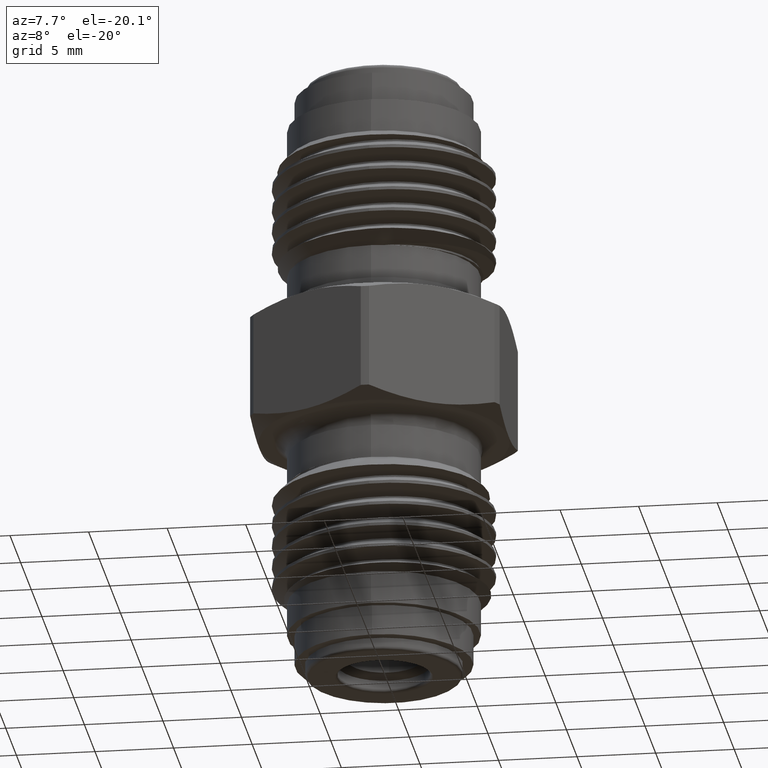
[diagram: clean part render]
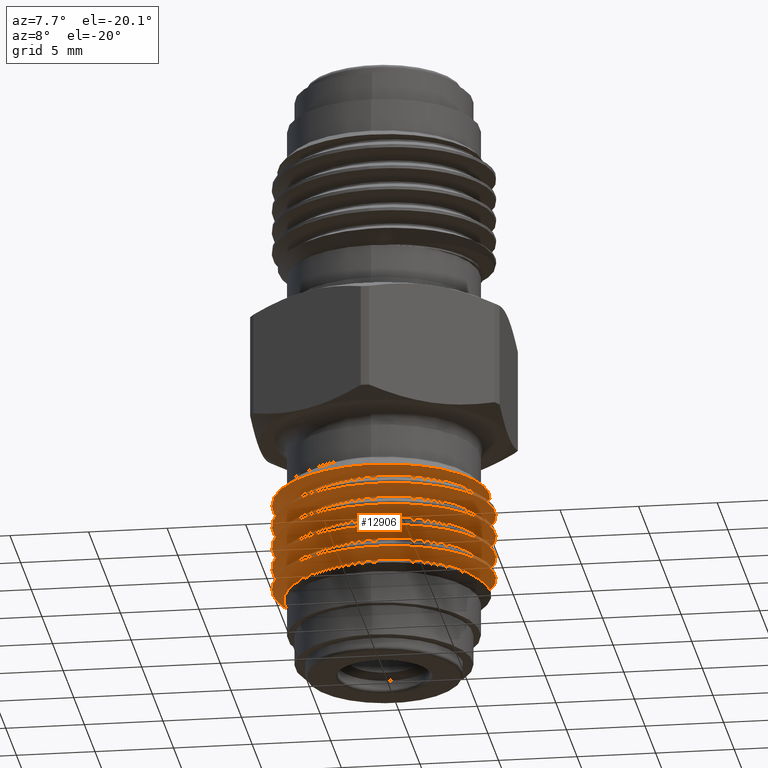
[diagram: same view with one face highlighted and labeled with its STEP entity id]
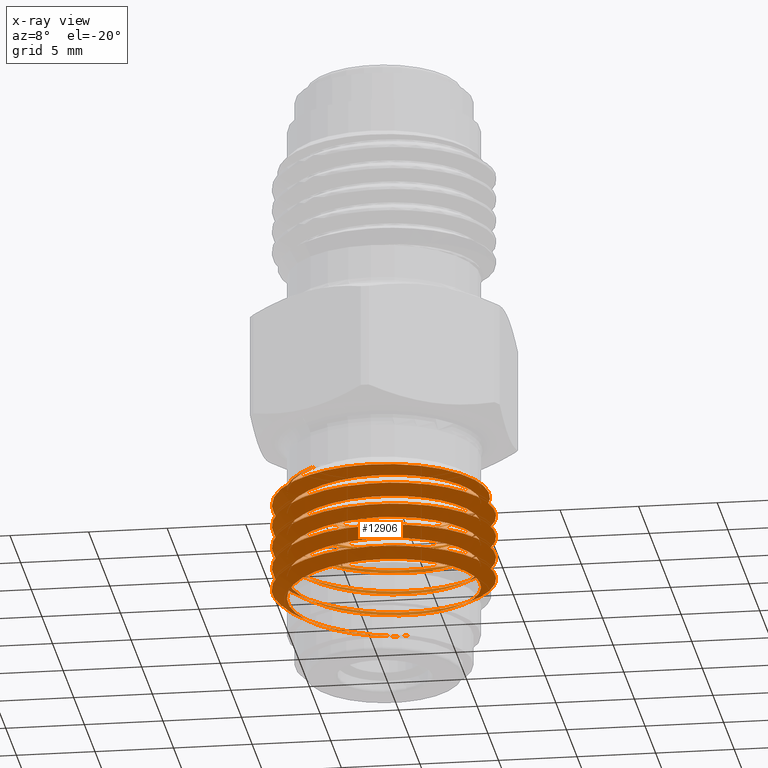
[diagram: x-ray of the same camera — body ghosted, the highlighted face saturated]
A machine part, auxiliary view. The second image highlights one B-rep face of the part: STEP entity #12906.
The next image is the same camera in x-ray: the body ghosted, the highlighted face saturated — about 7% of this face is hidden behind the body in this view.
In plain terms, the highlighted face is a freeform B-spline surface patch.
Its self-contained STEP definition (entity closure, byte-faithful):
#16 = VERTEX_POINT ( 'NONE', #12344 ) ;
#32 = CARTESIAN_POINT ( 'NONE',  ( 0.09982355131133487103, 0.2410007941298321910, 0.1357222925621557608 ) ) ;
#35 = CARTESIAN_POINT ( 'NONE',  ( 0.2500521283239185988, -0.09194387826773126049, 0.4698871479085278691 ) ) ;
#45 = CARTESIAN_POINT ( 'NONE',  ( -0.09982738574617947003, 0.2409992058549154936, 0.2537778481177113132 ) ) ;
#65 = CARTESIAN_POINT ( 'NONE',  ( -0.1969276719311219559, -0.1969308051773221990, 0.4039007054345444825 ) ) ;
#74 = B_SPLINE_CURVE_WITH_KNOTS ( 'NONE', 3,
 ( #3842, #5906, #2746, #3799, #11174, #4866, #12239, #13268, #10304, #4036, #8380, #7320, #12455, #6115, #7176, #10439, #2040, #985, #1042, #4124, #13633, #6167, #939, #5092, #10485, #3986, #11543, #13444, #11362, #2091, #8425, #9434 ),
 .UNSPECIFIED., .F., .F.,
 ( 4, 2, 2, 2, 2, 2, 2, 2, 2, 2, 2, 2, 2, 2, 2, 4 ),
 ( 0.02813804858403308462, 0.02912146451849806708, 0.03010488045296304607, 0.03207171232189300752, 0.03305512825635799345, 0.03403854419082297245, 0.03502196012528795144, 0.03600537605975293043, 0.03698879199421791636, 0.03797220792868289535, 0.03895562386314788128, 0.03993903979761286027, 0.04092245573207783926, 0.04190587166654281825, 0.04288928760100780418, 0.04387270353547278318 ),
 .UNSPECIFIED. ) ;
#89 = CARTESIAN_POINT ( 'NONE',  ( -0.1704113785831251060, -0.1704140899380058305, 0.1600278481177113132 ) ) ;
#99 = CARTESIAN_POINT ( 'NONE',  ( 0.2409992058549155769, 0.09982738574617937288, 0.2954445147843779984 ) ) ;
#106 = CARTESIAN_POINT ( 'NONE',  ( -2.622338640689465888E-16, -0.2785000000000000808, 0.3552895276368852606 ) ) ;
#116 = CARTESIAN_POINT ( 'NONE',  ( 0.2785009176977523149, -0.1153562615776213690, 0.3101507054345444825 ) ) ;
#137 = CARTESIAN_POINT ( 'NONE',  ( -0.1704140899380057750, 0.1704113785831251615, 0.2572500703399335231 ) ) ;
#146 = CARTESIAN_POINT ( 'NONE',  ( 0.2409992058549155769, 0.09982738574617937288, 0.4621111814510447391 ) ) ;
#185 = CARTESIAN_POINT ( 'NONE',  ( -0.2409999999923739256, -1.917217422336586677E-06, 0.4308611814510446281 ) ) ;
#193 = CARTESIAN_POINT ( 'NONE',  ( 0.09982355131133485715, 0.2410007941298321910, 0.3023889592288224737 ) ) ;
#198 = ORIENTED_EDGE ( 'NONE', *, *, #1991, .F. ) ;
#214 = CARTESIAN_POINT ( 'NONE',  ( -0.1153571792899788784, -0.2784999999999960285, 0.2407062219261531244 ) ) ;
#216 = CARTESIAN_POINT ( 'NONE',  ( 0.1969308051773221990, -0.1969276719311219281, 0.2511229276567667479 ) ) ;
#229 = CARTESIAN_POINT ( 'NONE',  ( -1.917217422317847767E-06, 0.2409999999923738701, 0.4169722925621556775 ) ) ;
#236 = CARTESIAN_POINT ( 'NONE',  ( -0.2409992058549155769, -0.09982738574617940064, 0.2676667370066002083 ) ) ;
#269 = CARTESIAN_POINT ( 'NONE',  ( -0.2410007941298322465, 0.09982355131133491266, 0.4829445147843779429 ) ) ;
#277 = CARTESIAN_POINT ( 'NONE',  ( 1.917217422294596713E-06, -0.2409999999923738701, 0.4447500703399335231 ) ) ;
#310 = CARTESIAN_POINT ( 'NONE',  ( -0.1269829160468066709, -0.2446596119848203632, 0.4603549338299884330 ) ) ;
#312 = CARTESIAN_POINT ( 'NONE',  ( -1.917217422321249451E-06, 0.2409999999923738701, 0.4725278481177112577 ) ) ;
#328 = CARTESIAN_POINT ( 'NONE',  ( -0.2840009358210471291, 0.1176343924166768362, 0.1744372430261983964 ) ) ;
#342 = FACE_OUTER_BOUND ( 'NONE', #6128, .T. ) ;
#355 = CARTESIAN_POINT ( 'NONE',  ( -0.1704113785831251615, -0.1704140899380058305, 0.3266945147843779429 ) ) ;
#372 = CARTESIAN_POINT ( 'NONE',  ( -0.1176343924166766558, -0.2840009358210471846, 0.1327705763595317945 ) ) ;
#472 = CARTESIAN_POINT ( 'NONE',  ( -0.2784990822846225567, -0.1153606926568920554, 0.2337618165456555319 ) ) ;
#504 = CARTESIAN_POINT ( 'NONE',  ( -0.2839999999910132744, -2.259293559931911309E-06, 0.1223539096928650816 ) ) ;
#550 = CARTESIAN_POINT ( 'NONE',  ( -0.2840009358210471291, 0.1176343924166768362, 0.2299927985817540044 ) ) ;
#589 = CARTESIAN_POINT ( 'NONE',  ( 0.2008199234124218024, -0.2008167282888280170, 0.3098539096928651371 ) ) ;
#624 = CARTESIAN_POINT ( 'NONE',  ( 2.259293559892571711E-06, -0.2839999999910132744, 0.3584650208039762420 ) ) ;
#671 = CARTESIAN_POINT ( 'NONE',  ( 0.1176389110037964897, -0.2839990641609794197, 0.3619372430261983964 ) ) ;
#707 = CARTESIAN_POINT ( 'NONE',  ( 0.2840009358210471846, -0.1176343924166766697, 0.2577705763595317667 ) ) ;
#724 =( BOUNDED_CURVE ( )  B_SPLINE_CURVE ( 2, ( #6292, #4220, #2033, #7314, #7366, #8375, #12490, #11648, #3129, #9426, #2083 ),
 .UNSPECIFIED., .F., .F. ) 
 B_SPLINE_CURVE_WITH_KNOTS ( ( 3, 2, 2, 2, 2, 3 ),
 ( 0.1790254628560759009, 0.1915253329305931507, 0.2040253329305931063, 0.2165253329305930619, 0.2290253329305931285, 0.2290254628560759453 ),
 .UNSPECIFIED. ) 
 CURVE ( )  GEOMETRIC_REPRESENTATION_ITEM ( )  RATIONAL_B_SPLINE_CURVE ( ( 0.9999984176182890039, 0.9238803237103659916, 1.000000000000000000, 0.9238795325112867385, 1.000000000000000000, 0.9238795325112867385, 1.000000000000000000, 0.9238795325112867385, 1.000000000000000000, 0.9999992088009207469, 0.9999984176182890039 ) ) 
 REPRESENTATION_ITEM ( '' )  );
#747 = CARTESIAN_POINT ( 'NONE',  ( -0.2409992058549155214, -0.09982738574617941452, -0.01011104077117758009 ) ) ;
#799 = CARTESIAN_POINT ( 'NONE',  ( 0.09982738574617940064, -0.2409992058549155214, 0.05933340367326687959 ) ) ;
#851 = CARTESIAN_POINT ( 'NONE',  ( -0.2008199234124218302, 0.2008167282888280447, 0.4487427985817539766 ) ) ;
#900 = CARTESIAN_POINT ( 'NONE',  ( 0.1176389110037964897, -0.2839990641609794197, 0.4174927985817540321 ) ) ;
#903 = CARTESIAN_POINT ( 'NONE',  ( -0.2590161135721972263, 0.08483198180642767539, 0.2237721537121818427 ) ) ;
#916 = ORIENTED_EDGE ( 'NONE', *, *, #4597, .F. ) ;
#934 = EDGE_CURVE ( 'NONE', #11058, #1212, #74, .T. ) ;
#939 = CARTESIAN_POINT ( 'NONE',  ( -0.2376716226768202656, -0.06048978241412616974, 0.4908441419858898258 ) ) ;
#950 = CARTESIAN_POINT ( 'NONE',  ( -0.1704140899380057750, 0.1704113785831251615, 0.03502784811771131324 ) ) ;
#952 = CARTESIAN_POINT ( 'NONE',  ( 0.2508965565510295481, 0.07812657422137482544, 0.4735343682162289070 ) ) ;
#985 = CARTESIAN_POINT ( 'NONE',  ( -0.2454781211220175285, 0.02978643914152205238, 0.4888124749120907886 ) ) ;
#992 = CARTESIAN_POINT ( 'NONE',  ( -0.1153606926568922081, 0.2784990822846225011, 0.4420951498789889023 ) ) ;
#999 = CARTESIAN_POINT ( 'NONE',  ( -0.2409999999923738701, -1.917217422336586677E-06, 0.1530834036732668380 ) ) ;
#1001 = CARTESIAN_POINT ( 'NONE',  ( -0.1153571792899788784, -0.2784999999999960285, 0.2962617774817086769 ) ) ;
#1042 = CARTESIAN_POINT ( 'NONE',  ( -0.2464134006304826985, 0.01687400703801744326, 0.4891008790273372320 ) ) ;
#1053 = CARTESIAN_POINT ( 'NONE',  ( 0.2409999999923738701, 1.917217422307072661E-06, 0.2364167370066002083 ) ) ;
#1055 = CARTESIAN_POINT ( 'NONE',  ( 0.1812100522994964102, 0.1858432412685767920, 0.4763271116952346174 ) ) ;
#1063 = CARTESIAN_POINT ( 'NONE',  ( 0.2409999999923738701, 1.917217422307072661E-06, 0.2364167370066002083 ) ) ;
#1102 = CARTESIAN_POINT ( 'NONE',  ( -0.09982355131133474613, -0.2410007941298322742, 0.1079445147843779845 ) ) ;
#1110 = EDGE_CURVE ( 'NONE', #6153, #3496, #5505, .T. ) ;
#1149 = CARTESIAN_POINT ( 'NONE',  ( -0.1704113785831251615, -0.1704140899380058305, 0.2711389592288224182 ) ) ;
#1158 = CARTESIAN_POINT ( 'NONE',  ( -0.2409999999923739256, -1.917217422336586677E-06, 0.3197500703399334676 ) ) ;
#1165 = CARTESIAN_POINT ( 'NONE',  ( 0.2785009176977523149, -0.1153562615776213690, 0.3657062609901001182 ) ) ;
#1179 = CARTESIAN_POINT ( 'NONE',  ( 0.1969308051773221435, -0.1969276719311219281, 0.3066784832123222726 ) ) ;
#1197 = CARTESIAN_POINT ( 'NONE',  ( -0.2409999999923738701, -1.917217422336586677E-06, 0.2641945147843779984 ) ) ;
#1208 = CARTESIAN_POINT ( 'NONE',  ( 0.1704140899380057750, -0.1704113785831251060, 0.4516945147843780539 ) ) ;
#1212 = VERTEX_POINT ( 'NONE', #6859 ) ;
#1245 = CARTESIAN_POINT ( 'NONE',  ( -0.1704113785831251615, -0.1704140899380058305, 0.4378056258954890478 ) ) ;
#1254 = CARTESIAN_POINT ( 'NONE',  ( 0.2409992058549155769, 0.09982738574617937288, 0.4065556258954892144 ) ) ;
#1274 = CARTESIAN_POINT ( 'NONE',  ( 0.2784999999911874635, 2.215539635321660019E-06, 0.2580673721012111677 ) ) ;
#1290 = CARTESIAN_POINT ( 'NONE',  ( 0.1704113785831251060, 0.1704140899380058305, 0.3544722925621558440 ) ) ;
#1301 = CARTESIAN_POINT ( 'NONE',  ( 0.2409999999923738423, 1.917217422307072661E-06, 0.3475278481177113687 ) ) ;
#1333 = CARTESIAN_POINT ( 'NONE',  ( -0.1477828510333921708, -0.2332674913157404273, 0.4598642458720116344 ) ) ;
#1336 = CARTESIAN_POINT ( 'NONE',  ( -0.1704140899380058305, 0.1704113785831251615, 0.3683611814510445726 ) ) ;
#1350 = CARTESIAN_POINT ( 'NONE',  ( 0.2410007941298322187, -0.09982355131133477388, 0.4551667370066004303 ) ) ;
#1372 = ORIENTED_EDGE ( 'NONE', *, *, #2926, .T. ) ;
#1384 = CARTESIAN_POINT ( 'NONE',  ( -0.2409992058549155769, -0.09982738574617941452, 0.4898889592288224182 ) ) ;
#1429 = CARTESIAN_POINT ( 'NONE',  ( 0.2409999999923738423, 1.917217422307072661E-06, 0.2919722925621557885 ) ) ;
#1440 = CARTESIAN_POINT ( 'NONE',  ( 2.259293559909580556E-06, -0.2839999999910132744, 0.08068724302619845190 ) ) ;
#1468 = CARTESIAN_POINT ( 'NONE',  ( 0.2334278753271362972, 0.05993685861186639346, 0.5163883186926430113 ) ) ;
#1476 = CARTESIAN_POINT ( 'NONE',  ( 2.301806297443968493E-16, 0.2457320594515717271, 0.1974820594515717953 ) ) ;
#1477 = CARTESIAN_POINT ( 'NONE',  ( 2.259293559912982664E-06, -0.2839999999910132744, 0.02513168747064288555 ) ) ;
#1489 = CARTESIAN_POINT ( 'NONE',  ( 0.01739638277099869734, -0.2719370820122834487, 0.4633939964504750209 ) ) ;
#1512 = CARTESIAN_POINT ( 'NONE',  ( -0.2409992058549155769, -0.09982738574617940064, 0.4898889592288224182 ) ) ;
#1566 = CARTESIAN_POINT ( 'NONE',  ( -0.2008167282888280170, -0.2008199234124218302, 0.1292983541373095291 ) ) ;
#1579 = B_SPLINE_CURVE_WITH_KNOTS ( 'NONE', 3,
 ( #4468, #7679, #4379, #3301, #12829, #11841, #1333, #310, #4325, #3447, #6501, #7627, #10824, #8727 ),
 .UNSPECIFIED., .F., .F.,
 ( 4, 2, 2, 2, 2, 2, 4 ),
 ( 0.000000000000000000, 0.001807162292863329252, 0.002710743439294993444, 0.003614324585726658504, 0.004517905732158321828, 0.005421486878589983419, 0.007228649171453311803 ),
 .UNSPECIFIED. ) ;
#1609 = CARTESIAN_POINT ( 'NONE',  ( 0.1176389110037964897, -0.2839990641609794197, 0.2508261319150873470 ) ) ;
#1657 = CARTESIAN_POINT ( 'NONE',  ( -0.2839990641609794197, -0.1176389110037965174, 0.2924927985817539766 ) ) ;
#1683 = VERTEX_POINT ( 'NONE', #6283 ) ;
#1695 = CARTESIAN_POINT ( 'NONE',  ( -2.259293559899990026E-06, 0.2839999999910132744, 0.3306872430261984519 ) ) ;
#1739 = CARTESIAN_POINT ( 'NONE',  ( 0.1176343924166767946, 0.2840009358210471291, 0.3272150208039762420 ) ) ;
#1754 = CARTESIAN_POINT ( 'NONE',  ( -0.2784969098250942299, 0.001311951929754627457, 0.2302500000000233249 ) ) ;
#1779 = CARTESIAN_POINT ( 'NONE',  ( 0.2840009358210471291, -0.1176343924166766697, 0.3688816874706428717 ) ) ;
#1825 = CARTESIAN_POINT ( 'NONE',  ( 0.1176389110037964619, -0.2839990641609794197, 0.4730483541373095568 ) ) ;
#1867 = CARTESIAN_POINT ( 'NONE',  ( -0.2839990641609794197, -0.1176389110037965174, 0.5147150208039761310 ) ) ;
#1872 = VERTEX_POINT ( 'NONE', #11148 ) ;
#1913 = CARTESIAN_POINT ( 'NONE',  ( -0.1704113785831251060, -0.1704140899380058305, -0.006638818548955353720 ) ) ;
#1948 = CARTESIAN_POINT ( 'NONE',  ( -0.2784999999911874635, -2.215539635355766224E-06, 0.4525118165456555319 ) ) ;
#1950 = CARTESIAN_POINT ( 'NONE',  ( 0.2840009358210471291, -0.1176343924166766697, 0.4799927985817540321 ) ) ;
#1953 = CARTESIAN_POINT ( 'NONE',  ( 0.01741194196999519550, 0.2550074683867000203, 0.4802954544018430139 ) ) ;
#1954 = CARTESIAN_POINT ( 'NONE',  ( -0.2650913698089588100, 0.06887682856606983095, 0.2251040447643149200 ) ) ;
#1991 = EDGE_CURVE ( 'NONE', #11539, #3337, #9786, .T. ) ;
#2002 = CARTESIAN_POINT ( 'NONE',  ( 0.2839997145722295557, 0.03588025938792643171, 0.5400795693468822822 ) ) ;
#2006 = CARTESIAN_POINT ( 'NONE',  ( 0.2292988980923286735, 0.1251368452976876766, 0.4746715206904146278 ) ) ;
#2033 = CARTESIAN_POINT ( 'NONE',  ( 0.1969276719311219281, 0.1969308051773221990, 0.4316784832123222171 ) ) ;
#2040 = CARTESIAN_POINT ( 'NONE',  ( -0.2415814715492961284, 0.05546830711116478019, 0.4882227451775942306 ) ) ;
#2051 = CARTESIAN_POINT ( 'NONE',  ( 1.917217422315007242E-06, -0.2409999999923738701, 0.1114167370066002083 ) ) ;
#2053 = CARTESIAN_POINT ( 'NONE',  ( -0.1832715799907842502, 0.1873464000898848736, 0.2136923567642062538 ) ) ;
#2063 = CARTESIAN_POINT ( 'NONE',  ( 0.09982738574617937288, -0.2409992058549155214, 0.2260000703399335231 ) ) ;
#2083 = CARTESIAN_POINT ( 'NONE',  ( -2.656356008716682427E-16, -0.2785000000000000808, 0.4108450831924408964 ) ) ;
#2087 =( BOUNDED_SURFACE ( )  B_SPLINE_SURFACE ( 1, 2, ( 
 ( #12804, #8664, #7786, #13111, #1477, #11013, #5691, #7874, #8921, #8791, #13026, #10970, #7831, #2454, #2581, #5777, #10881, #8881, #2543, #9820, #1440, #9908, #4658, #6699, #12026, #5737, #4568, #13070, #6841, #9954, #3634, #4707, #504, #7906, #1566, #372, #8966, #11937, #5641, #3679, #2625, #9995, #11051, #4750, #5596, #12939, #6655, #328, #8841, #12249, #5956, #7994, #3896, #3810, #5825, #13152, #10041, #5873, #10223, #9136, #9015, #3725, #11103, #550, #12161, #3768, #12283, #6885, #13317, #1609, #11281, #707, #13199, #11145, #10177, #6927, #12113, #2756, #13279, #4790, #11183, #1657, #7954, #11233, #6964, #2669, #589, #9053, #3851, #13237, #4921, #1739, #1695, #9178, #5992, #2718, #7007, #8070, #10086, #4835, #624, #671, #2797, #1779, #12205, #7047, #5919, #9092, #8116, #2840, #8035, #10136, #4879, #6080, #7231, #4089, #10270, #900, #3060, #6033, #2969, #8206, #13547, #11371, #8297, #6126, #851, #2925, #9264, #8157, #10315, #9216, #8256, #1825, #10451, #1950, #13360, #12370, #13453, #5054, #5016, #9351, #7138, #10403, #2883, #1867, #7186, #3948, #4967, #11324, #7088, #12319, #3993, #2002, #12463 ),
 ( #12423, #747, #1913, #7284, #9309, #5150, #10357, #4047, #3020, #11468, #11420, #5104, #9392, #4139, #950, #6175, #8346, #13407, #12508, #13497, #6218, #799, #13645, #7533, #5397, #9581, #3148, #5238, #10589, #12749, #6452, #8441, #3102, #5199, #10684, #1102, #2051, #9633, #4235, #3197, #2253, #11554, #10637, #32, #11511, #2104, #9443, #7427, #999, #3305, #89, #6262, #12609, #6357, #11614, #6311, #7480, #7380, #3251, #8390, #9493, #12651, #10494, #12557, #4188, #13595, #7333, #10538, #8591, #5345, #11712, #4278, #1053, #5292, #8497, #2155, #9535, #11664, #137, #12698, #1197, #6403, #1149, #8543, #2206, #4327, #7682, #8824, #1429, #6684, #8695, #12966, #2482, #11926, #4514, #9801, #8775, #6549, #355, #5626, #2438, #9715, #11802, #3449, #7771, #9845, #1290, #9674, #11757, #3545, #1336, #8644, #4381, #10780, #9755, #5445, #4425, #3493, #6588, #12791, #2347, #11881, #10732, #10826, #229, #6504, #10868, #12873, #185, #7580, #1245, #4553, #5543, #2297, #7727, #8729, #3356, #5494, #12831, #5583, #312, #7630, #3403, #269, #12922, #1384, #4469, #11842, #2398, #6636, #8867, #4642, #10959, #4594, #1468 ) ),
 .UNSPECIFIED., .F., .F., .F. ) 
 B_SPLINE_SURFACE_WITH_KNOTS ( ( 2, 2 ),
 ( 3, 2, 2, 2, 2, 2, 2, 2, 2, 2, 2, 2, 2, 2, 2, 2, 2, 2, 2, 2, 2, 2, 2, 2, 2, 2, 2, 2, 2, 2, 2, 2, 2, 2, 2, 2, 2, 2, 2, 2, 2, 2, 2, 2, 2, 2, 2, 2, 2, 2, 2, 2, 2, 2, 2, 2, 2, 2, 2, 2, 2, 2, 2, 2, 2, 2, 2, 2, 2, 2, 2, 2, 2, 2, 2, 2, 2, 3 ),
 ( 0.000000000000000000, 1.000000000000000000 ),
 ( 0.000000000000000000, 0.01250000000000000069, 0.02500000000000000139, 0.03749999999999999861, 0.05000000000000000278, 0.06250000000000000000, 0.07499999999999999722, 0.08749999999999999445, 0.1000000000000000056, 0.1125000000000000028, 0.1250000000000000000, 0.1375000000000000111, 0.1499999999999999944, 0.1625000000000000056, 0.1749999999999999889, 0.1875000000000000000, 0.2000000000000000111, 0.2124999999999999944, 0.2250000000000000056, 0.2374999999999999889, 0.2500000000000000000, 0.2625000000000000111, 0.2750000000000000222, 0.2874999999999999778, 0.2999999999999999889, 0.3125000000000000000, 0.3250000000000000111, 0.3375000000000000222, 0.3499999999999999778, 0.3624999999999999889, 0.3750000000000000000, 0.3875000000000000111, 0.4000000000000000222, 0.4124999999999999778, 0.4249999999999999889, 0.4375000000000000000, 0.4500000000000000111, 0.4625000000000000222, 0.4749999999999999778, 0.4874999999999999889, 0.5000000000000000000, 0.5124999999999999556, 0.5250000000000000222, 0.5374999999999999778, 0.5500000000000000444, 0.5625000000000000000, 0.5749999999999999556, 0.5875000000000000222, 0.5999999999999999778, 0.6125000000000000444, 0.6250000000000000000, 0.6374999999999999556, 0.6500000000000000222, 0.6624999999999999778, 0.6750000000000000444, 0.6875000000000000000, 0.6999999999999999556, 0.7125000000000000222, 0.7249999999999999778, 0.7375000000000000444, 0.7500000000000000000, 0.7624999999999999556, 0.7750000000000000222, 0.7874999999999999778, 0.8000000000000000444, 0.8125000000000000000, 0.8249999999999999556, 0.8375000000000000222, 0.8499999999999999778, 0.8625000000000000444, 0.8750000000000000000, 0.8874999999999999556, 0.9000000000000000222, 0.9124999999999999778, 0.9250000000000000444, 0.9375000000000000000, 0.9499999999999999556, 0.9540253329305931063 ),
 .UNSPECIFIED. ) 
 GEOMETRIC_REPRESENTATION_ITEM ( )  RATIONAL_B_SPLINE_SURFACE ( (
 ( 1.000000000000000000, 0.9238795325112867385, 1.000000000000000000, 0.9238795325112867385, 1.000000000000000000, 0.9238795325112867385, 1.000000000000000000, 0.9238795325112867385, 1.000000000000000000, 0.9238795325112867385, 1.000000000000000000, 0.9238795325112867385, 1.000000000000000000, 0.9238795325112867385, 1.000000000000000000, 0.9238795325112867385, 1.000000000000000000, 0.9238795325112867385, 1.000000000000000000, 0.9238795325112867385, 1.000000000000000000, 0.9238795325112867385, 1.000000000000000000, 0.9238795325112867385, 1.000000000000000000, 0.9238795325112867385, 1.000000000000000000, 0.9238795325112867385, 1.000000000000000000, 0.9238795325112867385, 1.000000000000000000, 0.9238795325112867385, 1.000000000000000000, 0.9238795325112867385, 1.000000000000000000, 0.9238795325112867385, 1.000000000000000000, 0.9238795325112867385, 1.000000000000000000, 0.9238795325112867385, 1.000000000000000000, 0.9238795325112867385, 1.000000000000000000, 0.9238795325112867385, 1.000000000000000000, 0.9238795325112867385, 1.000000000000000000, 0.9238795325112867385, 1.000000000000000000, 0.9238795325112867385, 1.000000000000000000, 0.9238795325112867385, 1.000000000000000000, 0.9238795325112867385, 1.000000000000000000, 0.9238795325112867385, 1.000000000000000000, 0.9238795325112867385, 1.000000000000000000, 0.9238795325112867385, 1.000000000000000000, 0.9238795325112867385, 1.000000000000000000, 0.9238795325112867385, 1.000000000000000000, 0.9238795325112867385, 1.000000000000000000, 0.9238795325112867385, 1.000000000000000000, 0.9238795325112867385, 1.000000000000000000, 0.9238795325112867385, 1.000000000000000000, 0.9238795325112867385, 1.000000000000000000, 0.9238795325112867385, 1.000000000000000000, 0.9238795325112867385, 1.000000000000000000, 0.9238795325112867385, 1.000000000000000000, 0.9238795325112867385, 1.000000000000000000, 0.9238795325112867385, 1.000000000000000000, 0.9238795325112867385, 1.000000000000000000, 0.9238795325112867385, 1.000000000000000000, 0.9238795325112867385, 1.000000000000000000, 0.9238795325112867385, 1.000000000000000000, 0.9238795325112867385, 1.000000000000000000, 0.9238795325112867385, 1.000000000000000000, 0.9238795325112867385, 1.000000000000000000, 0.9238795325112867385, 1.000000000000000000, 0.9238795325112867385, 1.000000000000000000, 0.9238795325112867385, 1.000000000000000000, 0.9238795325112867385, 1.000000000000000000, 0.9238795325112867385, 1.000000000000000000, 0.9238795325112867385, 1.000000000000000000, 0.9238795325112867385, 1.000000000000000000, 0.9238795325112867385, 1.000000000000000000, 0.9238795325112867385, 1.000000000000000000, 0.9238795325112867385, 1.000000000000000000, 0.9238795325112867385, 1.000000000000000000, 0.9238795325112867385, 1.000000000000000000, 0.9238795325112867385, 1.000000000000000000, 0.9238795325112867385, 1.000000000000000000, 0.9238795325112867385, 1.000000000000000000, 0.9238795325112867385, 1.000000000000000000, 0.9238795325112867385, 1.000000000000000000, 0.9238795325112867385, 1.000000000000000000, 0.9238795325112867385, 1.000000000000000000, 0.9238795325112867385, 1.000000000000000000, 0.9238795325112867385, 1.000000000000000000, 0.9238795325112867385, 1.000000000000000000, 0.9238795325112867385, 1.000000000000000000, 0.9238795325112867385, 1.000000000000000000, 0.9238795325112867385, 1.000000000000000000, 0.9238795325112867385, 1.000000000000000000, 0.9238795325112867385, 1.000000000000000000, 0.9754871820420432105, 0.9667619246197340921),
 ( 1.000000000000000000, 0.9238795325112867385, 1.000000000000000000, 0.9238795325112867385, 1.000000000000000000, 0.9238795325112867385, 1.000000000000000000, 0.9238795325112867385, 1.000000000000000000, 0.9238795325112867385, 1.000000000000000000, 0.9238795325112867385, 1.000000000000000000, 0.9238795325112867385, 1.000000000000000000, 0.9238795325112867385, 1.000000000000000000, 0.9238795325112867385, 1.000000000000000000, 0.9238795325112867385, 1.000000000000000000, 0.9238795325112867385, 1.000000000000000000, 0.9238795325112867385, 1.000000000000000000, 0.9238795325112867385, 1.000000000000000000, 0.9238795325112867385, 1.000000000000000000, 0.9238795325112867385, 1.000000000000000000, 0.9238795325112867385, 1.000000000000000000, 0.9238795325112867385, 1.000000000000000000, 0.9238795325112867385, 1.000000000000000000, 0.9238795325112867385, 1.000000000000000000, 0.9238795325112867385, 1.000000000000000000, 0.9238795325112867385, 1.000000000000000000, 0.9238795325112867385, 1.000000000000000000, 0.9238795325112867385, 1.000000000000000000, 0.9238795325112867385, 1.000000000000000000, 0.9238795325112867385, 1.000000000000000000, 0.9238795325112867385, 1.000000000000000000, 0.9238795325112867385, 1.000000000000000000, 0.9238795325112867385, 1.000000000000000000, 0.9238795325112867385, 1.000000000000000000, 0.9238795325112867385, 1.000000000000000000, 0.9238795325112867385, 1.000000000000000000, 0.9238795325112867385, 1.000000000000000000, 0.9238795325112867385, 1.000000000000000000, 0.9238795325112867385, 1.000000000000000000, 0.9238795325112867385, 1.000000000000000000, 0.9238795325112867385, 1.000000000000000000, 0.9238795325112867385, 1.000000000000000000, 0.9238795325112867385, 1.000000000000000000, 0.9238795325112867385, 1.000000000000000000, 0.9238795325112867385, 1.000000000000000000, 0.9238795325112867385, 1.000000000000000000, 0.9238795325112867385, 1.000000000000000000, 0.9238795325112867385, 1.000000000000000000, 0.9238795325112867385, 1.000000000000000000, 0.9238795325112867385, 1.000000000000000000, 0.9238795325112867385, 1.000000000000000000, 0.9238795325112867385, 1.000000000000000000, 0.9238795325112867385, 1.000000000000000000, 0.9238795325112867385, 1.000000000000000000, 0.9238795325112867385, 1.000000000000000000, 0.9238795325112867385, 1.000000000000000000, 0.9238795325112867385, 1.000000000000000000, 0.9238795325112867385, 1.000000000000000000, 0.9238795325112867385, 1.000000000000000000, 0.9238795325112867385, 1.000000000000000000, 0.9238795325112867385, 1.000000000000000000, 0.9238795325112867385, 1.000000000000000000, 0.9238795325112867385, 1.000000000000000000, 0.9238795325112867385, 1.000000000000000000, 0.9238795325112867385, 1.000000000000000000, 0.9238795325112867385, 1.000000000000000000, 0.9238795325112867385, 1.000000000000000000, 0.9238795325112867385, 1.000000000000000000, 0.9238795325112867385, 1.000000000000000000, 0.9238795325112867385, 1.000000000000000000, 0.9238795325112867385, 1.000000000000000000, 0.9238795325112867385, 1.000000000000000000, 0.9238795325112867385, 1.000000000000000000, 0.9238795325112867385, 1.000000000000000000, 0.9238795325112867385, 1.000000000000000000, 0.9238795325112867385, 1.000000000000000000, 0.9238795325112867385, 1.000000000000000000, 0.9238795325112867385, 1.000000000000000000, 0.9238795325112867385, 1.000000000000000000, 0.9238795325112867385, 1.000000000000000000, 0.9238795325112867385, 1.000000000000000000, 0.9754871820420432105, 0.9667619246197340921) ) ) 
 REPRESENTATION_ITEM ( '' )  SURFACE ( )  );
#2091 = CARTESIAN_POINT ( 'NONE',  ( -0.1618606037757810145, -0.1798440542790099017, 0.4941490423884626892 ) ) ;
#2104 = CARTESIAN_POINT ( 'NONE',  ( -0.09982738574617948391, 0.2409992058549154936, 0.1426667370066002083 ) ) ;
#2155 = CARTESIAN_POINT ( 'NONE',  ( 0.09982355131133487103, 0.2410007941298321910, 0.2468334036732668380 ) ) ;
#2157 = CARTESIAN_POINT ( 'NONE',  ( 0.06859989425452268919, 0.2478416905303232332, 0.4791652575194758068 ) ) ;
#2166 = CARTESIAN_POINT ( 'NONE',  ( -0.1704140899380057750, 0.1704113785831251615, 0.2572500703399335231 ) ) ;
#2172 = CARTESIAN_POINT ( 'NONE',  ( 0.2784999999911874080, 2.215539635321660019E-06, 0.3691784832123223281 ) ) ;
#2184 = CARTESIAN_POINT ( 'NONE',  ( -0.2785009176977523149, 0.1153562615776215494, 0.3934840387678777418 ) ) ;
#2206 = CARTESIAN_POINT ( 'NONE',  ( 1.917217422304801766E-06, -0.2409999999923738701, 0.2780834036732668935 ) ) ;
#2216 = CARTESIAN_POINT ( 'NONE',  ( -0.1704113785831251615, -0.1704140899380058305, 0.3266945147843779429 ) ) ;
#2253 = CARTESIAN_POINT ( 'NONE',  ( 0.2409999999923738701, 1.917217422307072661E-06, 0.1253056258954891311 ) ) ;
#2258 = ORIENTED_EDGE ( 'NONE', *, *, #13336, .T. ) ;
#2263 = CARTESIAN_POINT ( 'NONE',  ( 0.09982355131133482939, 0.2410007941298321910, 0.4690556258954891033 ) ) ;
#2297 = CARTESIAN_POINT ( 'NONE',  ( 0.09982738574617934513, -0.2409992058549155214, 0.4482222925621558440 ) ) ;
#2311 = CARTESIAN_POINT ( 'NONE',  ( 0.1704113785831251060, 0.1704140899380058305, 0.4100278481177113132 ) ) ;
#2317 = CARTESIAN_POINT ( 'NONE',  ( -0.2784999999911874635, -2.215539635355766224E-06, 0.3414007054345443715 ) ) ;
#2347 = CARTESIAN_POINT ( 'NONE',  ( 0.2409999999923738423, 1.917217422307072661E-06, 0.4030834036732669490 ) ) ;
#2359 = CARTESIAN_POINT ( 'NONE',  ( -0.2409999999923739256, -1.917217422336586677E-06, 0.3753056258954890478 ) ) ;
#2398 = CARTESIAN_POINT ( 'NONE',  ( 1.917217422291194605E-06, -0.2409999999923738701, 0.5003056258954891033 ) ) ;
#2408 = CARTESIAN_POINT ( 'NONE',  ( -0.09982738574617947003, 0.2409992058549154936, 0.4204445147843779429 ) ) ;
#2438 = CARTESIAN_POINT ( 'NONE',  ( 1.917217422301400081E-06, -0.2409999999923738701, 0.3336389592288224182 ) ) ;
#2454 = CARTESIAN_POINT ( 'NONE',  ( -0.1176389110037966146, 0.2839990641609793642, 0.05638168747064287861 ) ) ;
#2466 = CARTESIAN_POINT ( 'NONE',  ( 2.215539635320359399E-06, -0.2784999999911874635, 0.2997340387678778528 ) ) ;
#2482 = CARTESIAN_POINT ( 'NONE',  ( -1.917217422311043975E-06, 0.2409999999923738701, 0.3058611814510446836 ) ) ;
#2512 = CARTESIAN_POINT ( 'NONE',  ( -2.588123270060574400E-16, -0.2785000000000000808, 0.2997339720813297914 ) ) ;
#2543 = CARTESIAN_POINT ( 'NONE',  ( -0.2008167282888280170, -0.2008199234124218302, 0.07374279858175397662 ) ) ;
#2558 = CARTESIAN_POINT ( 'NONE',  ( 0.04305088364501575421, -0.2685371975014430035, 0.4639194872532435565 ) ) ;
#2581 = CARTESIAN_POINT ( 'NONE',  ( -0.2008199234124218024, 0.2008167282888280447, 0.05985390969286508850 ) ) ;
#2625 = CARTESIAN_POINT ( 'NONE',  ( 0.2839999999910132744, 2.259293559897131289E-06, 0.1501316874706428994 ) ) ;
#2634 = CARTESIAN_POINT ( 'NONE',  ( 5.429791166835086270E-13, 0.2550883220442033972, 0.4806616779557963959 ) ) ;
#2669 = CARTESIAN_POINT ( 'NONE',  ( 0.1176389110037964897, -0.2839990641609794197, 0.3063816874706429272 ) ) ;
#2718 = CARTESIAN_POINT ( 'NONE',  ( -0.2840009358210471291, 0.1176343924166768362, 0.3411039096928651926 ) ) ;
#2746 = CARTESIAN_POINT ( 'NONE',  ( -0.02591330964452306929, 0.2535470240106812434, 0.4812109703988301512 ) ) ;
#2754 = CARTESIAN_POINT ( 'NONE',  ( 2.301806297443968493E-16, 0.2457320594515717271, 0.1974820594515717953 ) ) ;
#2756 = CARTESIAN_POINT ( 'NONE',  ( -0.1176389110037966423, 0.2839990641609793642, 0.2786039096928650816 ) ) ;
#2797 = CARTESIAN_POINT ( 'NONE',  ( 0.2008199234124218024, -0.2008167282888280170, 0.3654094652484206618 ) ) ;
#2840 = CARTESIAN_POINT ( 'NONE',  ( -0.1176389110037966423, 0.2839990641609793642, 0.3897150208039762420 ) ) ;
#2883 = CARTESIAN_POINT ( 'NONE',  ( -0.2839999999910133299, -2.259293559931911309E-06, 0.5112427985817540321 ) ) ;
#2925 = CARTESIAN_POINT ( 'NONE',  ( -0.2840009358210471291, 0.1176343924166768362, 0.4522150208039762420 ) ) ;
#2926 = EDGE_CURVE ( 'NONE', #7541, #1683, #12989, .T. ) ;
#2964 = VERTEX_POINT ( 'NONE', #8756 ) ;
#2969 = CARTESIAN_POINT ( 'NONE',  ( 0.2839999999910132189, 2.259293559897131289E-06, 0.4279094652484207173 ) ) ;
#3017 = CARTESIAN_POINT ( 'NONE',  ( -0.1969308051773221990, 0.1969276719311219559, 0.4455673721012111121 ) ) ;
#3019 =( BOUNDED_CURVE ( )  B_SPLINE_CURVE ( 2, ( #4133, #9389, #1948, #11508, #3017, #992, #10399, #10585, #7376 ),
 .UNSPECIFIED., .F., .T. ) 
 B_SPLINE_CURVE_WITH_KNOTS ( ( 3, 2, 2, 2, 3 ),
 ( 0.1455725585262370725, 0.1540253329305930619, 0.1665253329305931285, 0.1790253329305930841, 0.1790254628560759009 ),
 .UNSPECIFIED. ) 
 CURVE ( )  GEOMETRIC_REPRESENTATION_ITEM ( )  RATIONAL_B_SPLINE_CURVE ( ( 0.9666674831193606821, 0.9485256688611032327, 1.000000000000000000, 0.9238795325112867385, 1.000000000000000000, 0.9238795325112867385, 1.000000000000000000, 0.9999992088009207469, 0.9999984176182890039 ) ) 
 REPRESENTATION_ITEM ( '' )  );
#3020 = CARTESIAN_POINT ( 'NONE',  ( 0.2409999999923738701, 1.917217422307072661E-06, 0.01419451478437800361 ) ) ;
#3021 = CARTESIAN_POINT ( 'NONE',  ( 0.2411019211493163616, 0.1020001985892943913, 0.4741009500114620190 ) ) ;
#3048 = ORIENTED_EDGE ( 'NONE', *, *, #6404, .F. ) ;
#3060 = CARTESIAN_POINT ( 'NONE',  ( 0.2008199234124218024, -0.2008167282888280170, 0.4209650208039762420 ) ) ;
#3061 = CARTESIAN_POINT ( 'NONE',  ( 0.2374395463550867114, 0.1098122121366102988, 0.4742906001903215429 ) ) ;
#3069 = CARTESIAN_POINT ( 'NONE',  ( -0.09982738574617947003, 0.2409992058549154936, 0.1982222925621557608 ) ) ;
#3102 = CARTESIAN_POINT ( 'NONE',  ( -0.2409999999923738701, -1.917217422336586677E-06, 0.09752784811771129936 ) ) ;
#3104 = CARTESIAN_POINT ( 'NONE',  ( 0.1327790475153227678, 0.2220292462186873594, 0.4776196007941262422 ) ) ;
#3129 = CARTESIAN_POINT ( 'NONE',  ( 2.215539635313556031E-06, -0.2784999999911874635, 0.4108451498789889023 ) ) ;
#3148 = CARTESIAN_POINT ( 'NONE',  ( 0.1704113785831251615, 0.1704140899380058305, 0.07669451478437799841 ) ) ;
#3169 = CARTESIAN_POINT ( 'NONE',  ( 0.2784990822846225567, 0.1153606926568920138, 0.3726507054345445935 ) ) ;
#3197 = CARTESIAN_POINT ( 'NONE',  ( 0.2410007941298322742, -0.09982355131133477388, 0.1218334036732668935 ) ) ;
#3200 = CARTESIAN_POINT ( 'NONE',  ( -0.2439114885735665927, 0.1154617122062913531, 0.2210722254600313574 ) ) ;
#3209 = CARTESIAN_POINT ( 'NONE',  ( 0.2409999999923738423, 1.917217422307072661E-06, 0.4586389592288224182 ) ) ;
#3217 = CARTESIAN_POINT ( 'NONE',  ( 1.107769812811896517E-06, -0.2785000000000000253, 0.3552895609802141363 ) ) ;
#3227 = CARTESIAN_POINT ( 'NONE',  ( -0.1969308051773221990, 0.1969276719311219559, 0.3900118165456555874 ) ) ;
#3251 = CARTESIAN_POINT ( 'NONE',  ( 0.1704113785831251615, 0.1704140899380058305, 0.1878056258954891033 ) ) ;
#3253 = CARTESIAN_POINT ( 'NONE',  ( -0.2785009176977523149, 0.1153562615776215494, 0.2823729276567666924 ) ) ;
#3261 = CARTESIAN_POINT ( 'NONE',  ( 0.09982355131133482939, 0.2410007941298321910, 0.4135000703399335231 ) ) ;
#3301 = CARTESIAN_POINT ( 'NONE',  ( -0.1864605118872176004, -0.2049865501945100921, 0.4589003828394296325 ) ) ;
#3305 = CARTESIAN_POINT ( 'NONE',  ( -0.2409992058549155214, -0.09982738574617941452, 0.1565556258954891033 ) ) ;
#3318 = CARTESIAN_POINT ( 'NONE',  ( -0.09982738574617947003, 0.2409992058549154936, 0.4760000703399334676 ) ) ;
#3337 = VERTEX_POINT ( 'NONE', #1754 ) ;
#3356 = CARTESIAN_POINT ( 'NONE',  ( 0.2409999999923738423, 1.917217422307072661E-06, 0.4586389592288224182 ) ) ;
#3365 = CARTESIAN_POINT ( 'NONE',  ( -0.09982355131133477388, -0.2410007941298322742, 0.2746111814510446281 ) ) ;
#3385 = CARTESIAN_POINT ( 'NONE',  ( 0.1153606926568920416, -0.2784990822846225567, 0.3032062609901000627 ) ) ;
#3403 = CARTESIAN_POINT ( 'NONE',  ( -0.1704140899380058305, 0.1704113785831251615, 0.4794722925621557330 ) ) ;
#3414 = CARTESIAN_POINT ( 'NONE',  ( -0.2410007941298322187, 0.09982355131133491266, 0.3718334036732668380 ) ) ;
#3432 = CARTESIAN_POINT ( 'NONE',  ( 0.1969276719311219559, 0.1969308051773221990, 0.2650118165456555874 ) ) ;
#3447 = CARTESIAN_POINT ( 'NONE',  ( -0.09404098478588529542, -0.2583223390623011206, 0.4611005084331453729 ) ) ;
#3449 = CARTESIAN_POINT ( 'NONE',  ( 0.2410007941298322465, -0.09982355131133477388, 0.3440556258954891589 ) ) ;
#3480 = ORIENTED_EDGE ( 'NONE', *, *, #934, .F. ) ;
#3493 = CARTESIAN_POINT ( 'NONE',  ( 0.09982738574617937288, -0.2409992058549155214, 0.3926667370066002638 ) ) ;
#3496 = VERTEX_POINT ( 'NONE', #10333 ) ;
#3545 = CARTESIAN_POINT ( 'NONE',  ( -0.09982738574617948391, 0.2409992058549154936, 0.3648889592288223072 ) ) ;
#3634 = CARTESIAN_POINT ( 'NONE',  ( -0.2008199234124218024, 0.2008167282888280447, 0.1154094652484206479 ) ) ;
#3679 = CARTESIAN_POINT ( 'NONE',  ( 0.2840009358210471846, -0.1176343924166766697, 0.1466594652484206618 ) ) ;
#3725 = CARTESIAN_POINT ( 'NONE',  ( -0.1176389110037966423, 0.2839990641609793642, 0.2230483541373095013 ) ) ;
#3768 = CARTESIAN_POINT ( 'NONE',  ( -0.2839990641609794197, -0.1176389110037965174, 0.2369372430261984241 ) ) ;
#3799 = CARTESIAN_POINT ( 'NONE',  ( -0.05140832022532283718, 0.2490492929465813743, 0.4817797452564948069 ) ) ;
#3810 = CARTESIAN_POINT ( 'NONE',  ( 0.1176389110037964897, -0.2839990641609794197, 0.1952705763595317945 ) ) ;
#3842 = CARTESIAN_POINT ( 'NONE',  ( 5.429791166835086270E-13, 0.2550883220442033972, 0.4806616779557963959 ) ) ;
#3851 = CARTESIAN_POINT ( 'NONE',  ( 0.2839999999910132189, 2.259293559897131289E-06, 0.3167983541373095568 ) ) ;
#3896 = CARTESIAN_POINT ( 'NONE',  ( 2.259293559902777188E-06, -0.2839999999910132744, 0.1917983541373095291 ) ) ;
#3897 = EDGE_CURVE ( 'NONE', #1683, #1872, #4046, .T. ) ;
#3948 = CARTESIAN_POINT ( 'NONE',  ( -0.1176343924166766836, -0.2840009358210471846, 0.5216594652484206618 ) ) ;
#3986 = CARTESIAN_POINT ( 'NONE',  ( -0.2119980096854084117, -0.1202414038020882675, 0.4923759214247956373 ) ) ;
#3993 = CARTESIAN_POINT ( 'NONE',  ( 0.2839999999910132189, 2.259293559897131289E-06, 0.5390205763595317112 ) ) ;
#4036 = CARTESIAN_POINT ( 'NONE',  ( -0.1837966985788908325, 0.1706763968294413292, 0.4852622373410354073 ) ) ;
#4046 =( BOUNDED_CURVE ( )  B_SPLINE_CURVE ( 2, ( #7352, #9599, #9464, #3169, #2172, #1165, #7398, #12946, #12668, #3217, #106 ),
 .UNSPECIFIED., .F., .T. ) 
 B_SPLINE_CURVE_WITH_KNOTS ( ( 3, 2, 2, 2, 2, 3 ),
 ( 0.2790254628560758787, 0.2915253329305931285, 0.3040253329305930841, 0.3165253329305931507, 0.3290253329305931063, 0.3290254628560759231 ),
 .UNSPECIFIED. ) 
 CURVE ( )  GEOMETRIC_REPRESENTATION_ITEM ( )  RATIONAL_B_SPLINE_CURVE ( ( 0.9999984176182890039, 0.9238803237103659916, 1.000000000000000000, 0.9238795325112867385, 1.000000000000000000, 0.9238795325112867385, 1.000000000000000000, 0.9238795325112867385, 1.000000000000000000, 0.9999992088009207469, 0.9999984176182890039 ) ) 
 REPRESENTATION_ITEM ( '' )  );
#4047 = CARTESIAN_POINT ( 'NONE',  ( 0.2410007941298322742, -0.09982355131133477388, 0.01072229256215578158 ) ) ;
#4089 = CARTESIAN_POINT ( 'NONE',  ( -0.1176343924166766697, -0.2840009358210471846, 0.4105483541373095568 ) ) ;
#4093 = CARTESIAN_POINT ( 'NONE',  ( 5.429791166835086270E-13, 0.2550883220442033972, 0.4806616779557963959 ) ) ;
#4094 = CARTESIAN_POINT ( 'NONE',  ( -0.01705527120314608361, 0.2471086375044093120, 0.1988586375044064103 ) ) ;
#4124 = CARTESIAN_POINT ( 'NONE',  ( -0.2462597873705845430, -0.009093724181235251711, 0.4896645037835848369 ) ) ;
#4133 = CARTESIAN_POINT ( 'NONE',  ( -0.2399123260353981657, -0.1414366494805530949, 0.4572499999999992126 ) ) ;
#4139 = CARTESIAN_POINT ( 'NONE',  ( -0.09982738574617948391, 0.2409992058549154936, 0.03155562589548909641 ) ) ;
#4141 = CARTESIAN_POINT ( 'NONE',  ( 0.2092550377211016555, -0.1678579057637780980, 0.4680430983581204130 ) ) ;
#4182 = VERTEX_POINT ( 'NONE', #9401 ) ;
#4188 = CARTESIAN_POINT ( 'NONE',  ( -0.2409999999923738701, -1.917217422336586677E-06, 0.2086389592288224182 ) ) ;
#4189 = CARTESIAN_POINT ( 'NONE',  ( -0.1969308051773221435, 0.1969276719311219559, 0.2789007054345444825 ) ) ;
#4190 = CARTESIAN_POINT ( 'NONE',  ( 0.008655824356162454894, 0.2552686546849529114, 0.4804813453150285629 ) ) ;
#4191 = CARTESIAN_POINT ( 'NONE',  ( -0.2024548199931508752, 0.1701428596198918120, 0.2156499000587318859 ) ) ;
#4220 = CARTESIAN_POINT ( 'NONE',  ( 0.1153571792899789755, 0.2784999999999959730, 0.4351506663705975719 ) ) ;
#4235 = CARTESIAN_POINT ( 'NONE',  ( 0.1704140899380058305, -0.1704113785831251060, 0.1183611814510446697 ) ) ;
#4237 = CARTESIAN_POINT ( 'NONE',  ( -0.1765297424315671326, 0.1928243170643487991, 0.2130363314280985798 ) ) ;
#4278 = CARTESIAN_POINT ( 'NONE',  ( 0.2410007941298322742, -0.09982355131133477388, 0.2329445147843779707 ) ) ;
#4289 = CARTESIAN_POINT ( 'NONE',  ( 1.917217422297998397E-06, -0.2409999999923738701, 0.3891945147843779429 ) ) ;
#4305 = CARTESIAN_POINT ( 'NONE',  ( -0.1153606926568921803, 0.2784990822846225011, 0.3865395943234333220 ) ) ;
#4325 = CARTESIAN_POINT ( 'NONE',  ( -0.1162364004399021739, -0.2496742347306627752, 0.4606021673438415176 ) ) ;
#4327 = CARTESIAN_POINT ( 'NONE',  ( 0.09982738574617937288, -0.2409992058549155214, 0.2815556258954891033 ) ) ;
#4336 = CARTESIAN_POINT ( 'NONE',  ( -0.1704140899380058305, 0.1704113785831251615, 0.4239167370066001528 ) ) ;
#4379 = CARTESIAN_POINT ( 'NONE',  ( -0.2122690162918087486, -0.1803680571293996004, 0.4582151726676726433 ) ) ;
#4381 = CARTESIAN_POINT ( 'NONE',  ( -0.2409999999923739256, -1.917217422336586677E-06, 0.3753056258954890478 ) ) ;
#4390 = CARTESIAN_POINT ( 'NONE',  ( -0.2410007941298322187, 0.09982355131133491266, 0.4829445147843779429 ) ) ;
#4425 = CARTESIAN_POINT ( 'NONE',  ( 1.917217422297998397E-06, -0.2409999999923738701, 0.3891945147843779429 ) ) ;
#4436 = CARTESIAN_POINT ( 'NONE',  ( -0.09982738574617947003, 0.2409992058549154936, 0.3093334036732667824 ) ) ;
#4456 = CARTESIAN_POINT ( 'NONE',  ( 2.215539635323761931E-06, -0.2784999999911874635, 0.2441784832123222726 ) ) ;
#4468 = CARTESIAN_POINT ( 'NONE',  ( -0.2399123260353981657, -0.1414366494805530949, 0.4572499999999992126 ) ) ;
#4469 = CARTESIAN_POINT ( 'NONE',  ( -0.1704113785831251615, -0.1704140899380058305, 0.4933611814510446281 ) ) ;
#4479 = ORIENTED_EDGE ( 'NONE', *, *, #7438, .T. ) ;
#4482 = CARTESIAN_POINT ( 'NONE',  ( 0.1704140899380057750, -0.1704113785831251060, 0.3961389592288224737 ) ) ;
#4499 = CARTESIAN_POINT ( 'NONE',  ( 0.2784990822846226122, 0.1153606926568920138, 0.2615395943234333775 ) ) ;
#4502 = ORIENTED_EDGE ( 'NONE', *, *, #9588, .T. ) ;
#4514 = CARTESIAN_POINT ( 'NONE',  ( -0.1704140899380058305, 0.1704113785831251615, 0.3128056258954890478 ) ) ;
#4553 = CARTESIAN_POINT ( 'NONE',  ( -0.09982355131133478776, -0.2410007941298322742, 0.4412778481177112577 ) ) ;
#4568 = CARTESIAN_POINT ( 'NONE',  ( 0.2008167282888280447, 0.2008199234124218302, 0.1015205763595317945 ) ) ;
#4590 = VERTEX_POINT ( 'NONE', #5256 ) ;
#4594 = CARTESIAN_POINT ( 'NONE',  ( 0.2409997577884059883, 0.03044768490313475018, 0.5152535077717285139 ) ) ;
#4597 = EDGE_CURVE ( 'NONE', #16, #11539, #8681, .T. ) ;
#4642 = CARTESIAN_POINT ( 'NONE',  ( 0.2410007941298322465, -0.09982355131133477388, 0.5107222925621558440 ) ) ;
#4645 =( BOUNDED_CURVE ( )  B_SPLINE_CURVE ( 2, ( #5164, #9407, #5116, #3069, #8508, #13657, #11628, #10504, #10463, #12574, #13605, #2063, #7344, #7391, #1063, #8453, #5302, #12660, #6369, #45, #2166, #9543, #5458, #236, #5355, #3365, #10748, #12760, #8743, #8656, #12709, #99, #11813, #193, #6558, #4436, #12799, #6413, #1158, #12842, #2216, #5504, #7641, #10650, #8556, #11770, #1301, #8705, #6601, #10600, #9723, #6462, #7588, #3414, #2359, #7494, #9590, #10794, #4289, #8604, #4482, #11671, #6517, #1254, #2311, #3261, #9685, #2408, #4336, #11849, #11726, #5554, #5408, #12888, #277, #7694, #1208, #1350, #3209, #146, #7543, #2263, #9646, #3318, #10692, #4390, #8785, #1512, #12934, #6694, #10923 ),
 .UNSPECIFIED., .F., .F. ) 
 B_SPLINE_CURVE_WITH_KNOTS ( ( 3, 2, 2, 2, 2, 2, 2, 2, 2, 2, 2, 2, 2, 2, 2, 2, 2, 2, 2, 2, 2, 2, 2, 2, 2, 2, 2, 2, 2, 2, 2, 2, 2, 2, 2, 2, 2, 2, 2, 2, 2, 2, 2, 2, 2, 3 ),
 ( 0.3892098103237000006, 0.3930713232195763296, 0.4061737006602273992, 0.4192760781008784687, 0.4323784555415294828, 0.4454808329821805524, 0.4585832104228316219, 0.4716855878634826915, 0.4847879653041338166, 0.4978903427447848307, 0.5109927201854358447, 0.5240950976260869698, 0.5371974750667379839, 0.5502998525073891090, 0.5634022299480401230, 0.5765046073886912481, 0.5896069848293422622, 0.6027093622699932762, 0.6158117397106444013, 0.6289141171512954154, 0.6420164945919465405, 0.6551188720325975545, 0.6682212494732485686, 0.6813236269138996937, 0.6944260043545507077, 0.7075283817952018328, 0.7206307592358529579, 0.7337331366765038609, 0.7468355141171549860, 0.7599378915578061111, 0.7730402689984572362, 0.7861426464391081392, 0.7992450238797592643, 0.8123474013204103894, 0.8254497787610612924, 0.8385521562017124175, 0.8516545336423635426, 0.8647569110830145567, 0.8778592885236656818, 0.8909616659643166958, 0.9040640434049678209, 0.9171664208456189460, 0.9302687982862698490, 0.9433711757269209741, 0.9564735531675720992, 0.9591923051790205434 ),
 .UNSPECIFIED. ) 
 CURVE ( )  GEOMETRIC_REPRESENTATION_ITEM ( )  RATIONAL_B_SPLINE_CURVE ( ( 0.9683552751190172003, 0.9775658907569072520, 1.000000000000000000, 0.9238795325112867385, 1.000000000000000000, 0.9238795325112867385, 1.000000000000000000, 0.9238795325112867385, 1.000000000000000000, 0.9238795325112867385, 1.000000000000000000, 0.9238795325112867385, 1.000000000000000000, 0.9238795325112867385, 1.000000000000000000, 0.9238795325112867385, 1.000000000000000000, 0.9238795325112867385, 1.000000000000000000, 0.9238795325112867385, 1.000000000000000000, 0.9238795325112867385, 1.000000000000000000, 0.9238795325112867385, 1.000000000000000000, 0.9238795325112867385, 1.000000000000000000, 0.9238795325112867385, 1.000000000000000000, 0.9238795325112867385, 1.000000000000000000, 0.9238795325112867385, 1.000000000000000000, 0.9238795325112867385, 1.000000000000000000, 0.9238795325112867385, 1.000000000000000000, 0.9238795325112867385, 1.000000000000000000, 0.9238795325112867385, 1.000000000000000000, 0.9238795325112867385, 1.000000000000000000, 0.9238795325112867385, 1.000000000000000000, 0.9238795325112867385, 1.000000000000000000, 0.9238795325112867385, 1.000000000000000000, 0.9238795325112867385, 1.000000000000000000, 0.9238795325112867385, 1.000000000000000000, 0.9238795325112867385, 1.000000000000000000, 0.9238795325112867385, 1.000000000000000000, 0.9238795325112867385, 1.000000000000000000, 0.9238795325112867385, 1.000000000000000000, 0.9238795325112867385, 1.000000000000000000, 0.9238795325112867385, 1.000000000000000000, 0.9238795325112867385, 1.000000000000000000, 0.9238795325112867385, 1.000000000000000000, 0.9238795325112867385, 1.000000000000000000, 0.9238795325112867385, 1.000000000000000000, 0.9238795325112867385, 1.000000000000000000, 0.9238795325112867385, 1.000000000000000000, 0.9238795325112867385, 1.000000000000000000, 0.9238795325112867385, 1.000000000000000000, 0.9238795325112867385, 1.000000000000000000, 0.9238795325112867385, 1.000000000000000000, 0.9238795325112867385, 1.000000000000000000, 0.9238795325112867385, 1.000000000000000000, 0.9842049524954721296, 0.9749648706631475203 ) ) 
 REPRESENTATION_ITEM ( '' )  );
#4658 = CARTESIAN_POINT ( 'NONE',  ( 0.2008199234124218302, -0.2008167282888280170, 0.08763168747064289943 ) ) ;
#4707 = CARTESIAN_POINT ( 'NONE',  ( -0.2840009358210471291, 0.1176343924166768362, 0.1188816874706428578 ) ) ;
#4750 = CARTESIAN_POINT ( 'NONE',  ( 0.1176343924166767946, 0.2840009358210471291, 0.1605483541373095568 ) ) ;
#4783 = ORIENTED_EDGE ( 'NONE', *, *, #5075, .T. ) ;
#4790 = CARTESIAN_POINT ( 'NONE',  ( -0.2840009358210471291, 0.1176343924166768362, 0.2855483541373095013 ) ) ;
#4835 = CARTESIAN_POINT ( 'NONE',  ( -0.1176343924166766697, -0.2840009358210471846, 0.3549927985817539211 ) ) ;
#4866 = CARTESIAN_POINT ( 'NONE',  ( -0.1012489340084620631, 0.2331022821918700139, 0.4829602870730191344 ) ) ;
#4879 = CARTESIAN_POINT ( 'NONE',  ( -0.2839999999910133299, -2.259293559931911309E-06, 0.4001316874706428717 ) ) ;
#4921 = CARTESIAN_POINT ( 'NONE',  ( 0.2008167282888280170, 0.2008199234124218302, 0.3237427985817540321 ) ) ;
#4967 = CARTESIAN_POINT ( 'NONE',  ( 2.259293559882366235E-06, -0.2839999999910132744, 0.5251316874706428717 ) ) ;
#5016 = CARTESIAN_POINT ( 'NONE',  ( -2.259293559910195502E-06, 0.2839999999910132744, 0.4973539096928650816 ) ) ;
#5031 = VERTEX_POINT ( 'NONE', #13391 ) ;
#5054 = CARTESIAN_POINT ( 'NONE',  ( 0.1176343924166767668, 0.2840009358210471291, 0.4938816874706429827 ) ) ;
#5075 = EDGE_CURVE ( 'NONE', #4182, #7541, #724, .T. ) ;
#5092 = CARTESIAN_POINT ( 'NONE',  ( -0.2293812595665303822, -0.08505351966104435224, 0.4914511487248742205 ) ) ;
#5104 = CARTESIAN_POINT ( 'NONE',  ( 0.09982355131133489878, 0.2410007941298321910, 0.02461118145104466276 ) ) ;
#5105 = CARTESIAN_POINT ( 'NONE',  ( 0.1543157729433655700, 0.2078028124113271979, 0.4770583361125971256 ) ) ;
#5116 = CARTESIAN_POINT ( 'NONE',  ( -1.917217422304240606E-06, 0.2409999999923738701, 0.1947500703399335509 ) ) ;
#5150 = CARTESIAN_POINT ( 'NONE',  ( 0.09982738574617940064, -0.2409992058549155214, 0.003777848117711329716 ) ) ;
#5154 = CARTESIAN_POINT ( 'NONE',  ( 0.1167728187472807794, -0.2442753028067211896, 0.4655587168744179660 ) ) ;
#5164 = CARTESIAN_POINT ( 'NONE',  ( 0.05487703335878196115, 0.2346689395930766642, 0.1927500000000788860 ) ) ;
#5199 = CARTESIAN_POINT ( 'NONE',  ( -0.2409992058549155214, -0.09982738574617941452, 0.1010000703399335370 ) ) ;
#5201 = CARTESIAN_POINT ( 'NONE',  ( 0.1747333795459380390, 0.1917057055529041709, 0.4765060911244777819 ) ) ;
#5238 = CARTESIAN_POINT ( 'NONE',  ( 0.09982355131133489878, 0.2410007941298321910, 0.08016673700660020829 ) ) ;
#5242 = CARTESIAN_POINT ( 'NONE',  ( 2.301806297443968493E-16, 0.2457320594515717271, 0.1974820594515717953 ) ) ;
#5256 = CARTESIAN_POINT ( 'NONE',  ( -2.588123270060574400E-16, -0.2785000000000000808, 0.2997339720813297914 ) ) ;
#5292 = CARTESIAN_POINT ( 'NONE',  ( 0.2409992058549156047, 0.09982738574617937288, 0.2398889592288224459 ) ) ;
#5293 = CARTESIAN_POINT ( 'NONE',  ( 0.2551161873274764846, -0.07550935357720157948, 0.4702584390713696050 ) ) ;
#5294 = CARTESIAN_POINT ( 'NONE',  ( -0.1333997451209450458, 0.2205535723291073835, 0.2089469676127000963 ) ) ;
#5302 = CARTESIAN_POINT ( 'NONE',  ( 0.1704113785831251615, 0.1704140899380058305, 0.2433611814510446558 ) ) ;
#5314 =( BOUNDED_CURVE ( )  B_SPLINE_CURVE ( 2, ( #11900, #10699, #9598, #9773, #2317, #6468, #7647, #9689, #5463, #12714, #7501 ),
 .UNSPECIFIED., .F., .F. ) 
 B_SPLINE_CURVE_WITH_KNOTS ( ( 3, 2, 2, 2, 2, 3 ),
 ( 0.3290254628560759231, 0.3415253329305930619, 0.3540253329305931285, 0.3665253329305930841, 0.3790253329305931507, 0.3790254628560759675 ),
 .UNSPECIFIED. ) 
 CURVE ( )  GEOMETRIC_REPRESENTATION_ITEM ( )  RATIONAL_B_SPLINE_CURVE ( ( 0.9999984176182890039, 0.9238803237103659916, 1.000000000000000000, 0.9238795325112867385, 1.000000000000000000, 0.9238795325112867385, 1.000000000000000000, 0.9238795325112867385, 1.000000000000000000, 0.9999992088009207469, 0.9999984176182890039 ) ) 
 REPRESENTATION_ITEM ( '' )  );
#5322 = CARTESIAN_POINT ( 'NONE',  ( -2.656356008716682427E-16, -0.2785000000000000808, 0.4108450831924408964 ) ) ;
#5345 = CARTESIAN_POINT ( 'NONE',  ( 0.09982738574617937288, -0.2409992058549155214, 0.2260000703399335231 ) ) ;
#5347 = CARTESIAN_POINT ( 'NONE',  ( -0.2140291120699095995, 0.1575786819455728405, 0.2169809447982927741 ) ) ;
#5355 = CARTESIAN_POINT ( 'NONE',  ( -0.1704113785831251615, -0.1704140899380058305, 0.2711389592288224182 ) ) ;
#5374 = CARTESIAN_POINT ( 'NONE',  ( -1.107769812823010225E-06, 0.2785000000000000253, 0.3830673387579919265 ) ) ;
#5377 = CARTESIAN_POINT ( 'NONE',  ( 0.2784999999911874080, 2.215539635321660019E-06, 0.3136229276567666924 ) ) ;
#5397 = CARTESIAN_POINT ( 'NONE',  ( 0.2409999999923738701, 1.917217422307072661E-06, 0.06975007033993356476 ) ) ;
#5408 = CARTESIAN_POINT ( 'NONE',  ( -0.1704113785831251615, -0.1704140899380058305, 0.4378056258954890478 ) ) ;
#5445 = CARTESIAN_POINT ( 'NONE',  ( -0.09982355131133477388, -0.2410007941298322742, 0.3857222925621557330 ) ) ;
#5458 = CARTESIAN_POINT ( 'NONE',  ( -0.2409999999923738701, -1.917217422336586677E-06, 0.2641945147843779984 ) ) ;
#5463 = CARTESIAN_POINT ( 'NONE',  ( -2.215539635324661056E-06, 0.2784999999911874635, 0.3275118165456555874 ) ) ;
#5494 = CARTESIAN_POINT ( 'NONE',  ( 0.2409992058549155769, 0.09982738574617937288, 0.4621111814510446836 ) ) ;
#5504 = CARTESIAN_POINT ( 'NONE',  ( -0.09982355131133477388, -0.2410007941298322742, 0.3301667370066001528 ) ) ;
#5505 =( BOUNDED_CURVE ( )  B_SPLINE_CURVE ( 2, ( #9742, #11789, #3432, #4499, #1274, #10764, #216, #6576, #4456, #10856, #11954 ),
 .UNSPECIFIED., .F., .F. ) 
 B_SPLINE_CURVE_WITH_KNOTS ( ( 3, 2, 2, 2, 2, 3 ),
 ( 0.4790254628560760009, 0.4915253329305930841, 0.5040253329305930396, 0.5165253329305931063, 0.5290253329305931729, 0.5290254628560759897 ),
 .UNSPECIFIED. ) 
 CURVE ( )  GEOMETRIC_REPRESENTATION_ITEM ( )  RATIONAL_B_SPLINE_CURVE ( ( 0.9999984176182883377, 0.9238803237103663246, 1.000000000000000000, 0.9238795325112867385, 1.000000000000000000, 0.9238795325112867385, 1.000000000000000000, 0.9238795325112867385, 1.000000000000000000, 0.9999992088009207469, 0.9999984176182890039 ) ) 
 REPRESENTATION_ITEM ( '' )  );
#5543 = CARTESIAN_POINT ( 'NONE',  ( 1.917217422294596713E-06, -0.2409999999923738701, 0.4447500703399335231 ) ) ;
#5554 = CARTESIAN_POINT ( 'NONE',  ( -0.2409992058549155769, -0.09982738574617940064, 0.4343334036732668935 ) ) ;
#5557 = CARTESIAN_POINT ( 'NONE',  ( 0.03692341517481054908, 0.2405666775678164671, 0.1944046664418979664 ) ) ;
#5569 = CARTESIAN_POINT ( 'NONE',  ( 1.107769812815308366E-06, -0.2785000000000000253, 0.2997340054246585561 ) ) ;
#5583 = CARTESIAN_POINT ( 'NONE',  ( 0.09982355131133482939, 0.2410007941298321910, 0.4690556258954891033 ) ) ;
#5596 = CARTESIAN_POINT ( 'NONE',  ( -2.259293559889784549E-06, 0.2839999999910132744, 0.1640205763595317945 ) ) ;
#5626 = CARTESIAN_POINT ( 'NONE',  ( -0.09982355131133477388, -0.2410007941298322742, 0.3301667370066001528 ) ) ;
#5641 = CARTESIAN_POINT ( 'NONE',  ( 0.2008199234124218302, -0.2008167282888280170, 0.1431872430261984519 ) ) ;
#5691 = CARTESIAN_POINT ( 'NONE',  ( 0.2008199234124218302, -0.2008167282888280170, 0.03207613191508734002 ) ) ;
#5737 = CARTESIAN_POINT ( 'NONE',  ( 0.2839990641609794753, 0.1176389110037964619, 0.09804835413730955684 ) ) ;
#5777 = CARTESIAN_POINT ( 'NONE',  ( -0.2840009358210471291, 0.1176343924166768362, 0.06332613191508731920 ) ) ;
#5825 = CARTESIAN_POINT ( 'NONE',  ( 0.2008199234124218302, -0.2008167282888280170, 0.1987427985817540044 ) ) ;
#5873 = CARTESIAN_POINT ( 'NONE',  ( 0.2839990641609794753, 0.1176389110037964619, 0.2091594652484206618 ) ) ;
#5906 = CARTESIAN_POINT ( 'NONE',  ( -0.01302729044128579476, 0.2548169156950600422, 0.4809330843049673954 ) ) ;
#5919 = CARTESIAN_POINT ( 'NONE',  ( 0.2008167282888280170, 0.2008199234124218302, 0.3792983541373096124 ) ) ;
#5956 = CARTESIAN_POINT ( 'NONE',  ( -0.2008167282888280170, -0.2008199234124218302, 0.1848539096928650816 ) ) ;
#5992 = CARTESIAN_POINT ( 'NONE',  ( -0.2008199234124218302, 0.2008167282888280447, 0.3376316874706428717 ) ) ;
#6033 = CARTESIAN_POINT ( 'NONE',  ( 0.2840009358210471291, -0.1176343924166766697, 0.4244372430261985074 ) ) ;
#6080 = CARTESIAN_POINT ( 'NONE',  ( -0.2839990641609794197, -0.1176389110037965174, 0.4036039096928650816 ) ) ;
#6115 = CARTESIAN_POINT ( 'NONE',  ( -0.2257995412617840592, 0.1051206280688507522, 0.4870175580589775621 ) ) ;
#6126 = CARTESIAN_POINT ( 'NONE',  ( -0.1176389110037966423, 0.2839990641609793642, 0.4452705763595318778 ) ) ;
#6128 = EDGE_LOOP ( 'NONE', ( #13058, #4783, #1372, #8210, #7687, #11567, #4479, #9528, #2258, #198, #916, #4502, #3480, #3048, #11017 ) ) ;
#6153 = VERTEX_POINT ( 'NONE', #9812 ) ;
#6167 = CARTESIAN_POINT ( 'NONE',  ( -0.2408264402550469585, -0.04793284854906247616, 0.4905446961243294379 ) ) ;
#6175 = CARTESIAN_POINT ( 'NONE',  ( -0.2410007941298321910, 0.09982355131133491266, 0.03850007033993353700 ) ) ;
#6177 = CARTESIAN_POINT ( 'NONE',  ( 0.08473945053193701615, -0.2579263903933508573, 0.4648186211319450534 ) ) ;
#6218 = CARTESIAN_POINT ( 'NONE',  ( 1.917217422318408926E-06, -0.2409999999923738701, 0.05586118145104465582 ) ) ;
#6221 = CARTESIAN_POINT ( 'NONE',  ( 0.1318897159074427228, -0.2360226218461570491, 0.4659242214211203881 ) ) ;
#6262 = CARTESIAN_POINT ( 'NONE',  ( -0.09982355131133477388, -0.2410007941298322742, 0.1635000703399335509 ) ) ;
#6264 = CARTESIAN_POINT ( 'NONE',  ( 0.1601708688213400456, -0.2164202028783825393, 0.4666452478470340393 ) ) ;
#6265 = CARTESIAN_POINT ( 'NONE',  ( -0.1554887368075576481, 0.2076382966846357092, 0.2110146080648738764 ) ) ;
#6283 = CARTESIAN_POINT ( 'NONE',  ( 2.511114587144707754E-16, 0.2785000000000000808, 0.3830673054146631062 ) ) ;
#6292 = CARTESIAN_POINT ( 'NONE',  ( 2.477094613820100885E-16, 0.2785000000000000808, 0.4386228609702186310 ) ) ;
#6311 = CARTESIAN_POINT ( 'NONE',  ( 0.2410007941298322742, -0.09982355131133477388, 0.1773889592288224182 ) ) ;
#6314 = CARTESIAN_POINT ( 'NONE',  ( 0.1800110668304788220, -0.1995019596412661855, 0.4671792866057300486 ) ) ;
#6357 = CARTESIAN_POINT ( 'NONE',  ( 0.09982738574617937288, -0.2409992058549155214, 0.1704445147843779984 ) ) ;
#6369 = CARTESIAN_POINT ( 'NONE',  ( -1.917217422307642290E-06, 0.2409999999923738701, 0.2503056258954891033 ) ) ;
#6386 = CARTESIAN_POINT ( 'NONE',  ( 0.1969276719311219281, 0.1969308051773221990, 0.3205673721012111677 ) ) ;
#6403 = CARTESIAN_POINT ( 'NONE',  ( -0.2409992058549155769, -0.09982738574617941452, 0.2676667370066002083 ) ) ;
#6404 = EDGE_CURVE ( 'NONE', #7863, #11058, #10058, .T. ) ;
#6405 = CARTESIAN_POINT ( 'NONE',  ( 2.579347325800815287E-16, 0.2785000000000000808, 0.2719561943035519458 ) ) ;
#6413 = CARTESIAN_POINT ( 'NONE',  ( -0.2410007941298322187, 0.09982355131133491266, 0.3162778481177112577 ) ) ;
#6452 = CARTESIAN_POINT ( 'NONE',  ( -0.1704140899380057750, 0.1704113785831251615, 0.09058340367326686571 ) ) ;
#6462 = CARTESIAN_POINT ( 'NONE',  ( -0.09982738574617947003, 0.2409992058549154936, 0.3648889592288223627 ) ) ;
#6468 = CARTESIAN_POINT ( 'NONE',  ( -0.2785009176977523149, 0.1153562615776215494, 0.3379284832123222726 ) ) ;
#6501 = CARTESIAN_POINT ( 'NONE',  ( -0.08249943516574430313, -0.2619743449597013996, 0.4613535700274958296 ) ) ;
#6504 = CARTESIAN_POINT ( 'NONE',  ( -0.09982738574617948391, 0.2409992058549154936, 0.4204445147843778874 ) ) ;
#6517 = CARTESIAN_POINT ( 'NONE',  ( 0.2409999999923738423, 1.917217422307072661E-06, 0.4030834036732669490 ) ) ;
#6524 = CARTESIAN_POINT ( 'NONE',  ( 0.05487703335878196115, 0.2346689395930766642, 0.1927500000000788860 ) ) ;
#6549 = CARTESIAN_POINT ( 'NONE',  ( -0.2409992058549155769, -0.09982738574617941452, 0.3232222925621557330 ) ) ;
#6558 = CARTESIAN_POINT ( 'NONE',  ( -1.917217422311043975E-06, 0.2409999999923738701, 0.3058611814510446836 ) ) ;
#6576 = CARTESIAN_POINT ( 'NONE',  ( 0.1153606926568920416, -0.2784990822846225567, 0.2476507054345444825 ) ) ;
#6588 = CARTESIAN_POINT ( 'NONE',  ( 0.1704140899380057750, -0.1704113785831251060, 0.3961389592288224737 ) ) ;
#6601 = CARTESIAN_POINT ( 'NONE',  ( 0.1704113785831251060, 0.1704140899380058305, 0.3544722925621558440 ) ) ;
#6636 = CARTESIAN_POINT ( 'NONE',  ( 0.09982738574617934513, -0.2409992058549155214, 0.5037778481177114243 ) ) ;
#6655 = CARTESIAN_POINT ( 'NONE',  ( -0.2008199234124218024, 0.2008167282888280447, 0.1709650208039762143 ) ) ;
#6684 = CARTESIAN_POINT ( 'NONE',  ( 0.2409992058549155769, 0.09982738574617937288, 0.2954445147843779429 ) ) ;
#6694 = CARTESIAN_POINT ( 'NONE',  ( -0.1566621255747091546, -0.1841631241904241323, 0.4940375085697552016 ) ) ;
#6699 = CARTESIAN_POINT ( 'NONE',  ( 0.2840009358210471846, -0.1176343924166766697, 0.09110390969286513707 ) ) ;
#6728 = CARTESIAN_POINT ( 'NONE',  ( -2.656356008716682427E-16, -0.2785000000000000808, 0.4108450831924408964 ) ) ;
#6729 = CARTESIAN_POINT ( 'NONE',  ( -2.638155401146938476E-16, -0.2726987274946243156, 0.4630512725053754219 ) ) ;
#6761 = CARTESIAN_POINT ( 'NONE',  ( 0.008674173620629339887, -0.2725296828239548996, 0.4632203171760448379 ) ) ;
#6841 = CARTESIAN_POINT ( 'NONE',  ( -2.259293559886382865E-06, 0.2839999999910132744, 0.1084650208039762143 ) ) ;
#6859 = CARTESIAN_POINT ( 'NONE',  ( -0.1408864811227176772, -0.1955300474015644885, 0.4947500000000002451 ) ) ;
#6885 = CARTESIAN_POINT ( 'NONE',  ( -0.1176343924166766697, -0.2840009358210471846, 0.2438816874706428717 ) ) ;
#6927 = CARTESIAN_POINT ( 'NONE',  ( 0.1176343924166767946, 0.2840009358210471291, 0.2716594652484206618 ) ) ;
#6964 = CARTESIAN_POINT ( 'NONE',  ( 2.259293559895973395E-06, -0.2839999999910132744, 0.3029094652484206618 ) ) ;
#7007 = CARTESIAN_POINT ( 'NONE',  ( -0.2839999999910133299, -2.259293559931911309E-06, 0.3445761319150872359 ) ) ;
#7047 = CARTESIAN_POINT ( 'NONE',  ( 0.2839990641609794197, 0.1176389110037964619, 0.3758261319150873470 ) ) ;
#7088 = CARTESIAN_POINT ( 'NONE',  ( 0.2008199234124218024, -0.2008167282888280170, 0.5320761319150872914 ) ) ;
#7138 = CARTESIAN_POINT ( 'NONE',  ( -0.2008199234124218302, 0.2008167282888280447, 0.5042983541373095013 ) ) ;
#7176 = CARTESIAN_POINT ( 'NONE',  ( -0.2306833008596182732, 0.09313067394665458520, 0.4873170114863780156 ) ) ;
#7186 = CARTESIAN_POINT ( 'NONE',  ( -0.2008167282888280447, -0.2008199234124218302, 0.5181872430261984519 ) ) ;
#7231 = CARTESIAN_POINT ( 'NONE',  ( -0.2008167282888280447, -0.2008199234124218302, 0.4070761319150873470 ) ) ;
#7234 = CARTESIAN_POINT ( 'NONE',  ( 0.2624775062271961779, 0.02744067791816208815, 0.4724168910134235455 ) ) ;
#7284 = CARTESIAN_POINT ( 'NONE',  ( -0.09982355131133474613, -0.2410007941298322742, -0.003166596326733129088 ) ) ;
#7286 = CARTESIAN_POINT ( 'NONE',  ( 0.2603114175536071495, -0.05004007346805473128, 0.4708141541542585351 ) ) ;
#7314 = CARTESIAN_POINT ( 'NONE',  ( 0.2784990822846225567, 0.1153606926568920138, 0.4282062609901000072 ) ) ;
#7320 = CARTESIAN_POINT ( 'NONE',  ( -0.2073718131603173587, 0.1395744168519640893, 0.4861224642477612878 ) ) ;
#7333 = CARTESIAN_POINT ( 'NONE',  ( -0.1704113785831251060, -0.1704140899380058305, 0.2155834036732668935 ) ) ;
#7334 = CARTESIAN_POINT ( 'NONE',  ( 0.1995307659351084617, 0.1675221330588242963, 0.4757923919051668116 ) ) ;
#7335 = CARTESIAN_POINT ( 'NONE',  ( -0.08508351746822771788, 0.2387495524410851166, 0.2046226022624572649 ) ) ;
#7344 = CARTESIAN_POINT ( 'NONE',  ( 0.1704140899380058305, -0.1704113785831251060, 0.2294722925621557608 ) ) ;
#7352 = CARTESIAN_POINT ( 'NONE',  ( 2.511114587144707754E-16, 0.2785000000000000808, 0.3830673054146631062 ) ) ;
#7366 = CARTESIAN_POINT ( 'NONE',  ( 0.2784999999911874080, 2.215539635321660019E-06, 0.4247340387678778528 ) ) ;
#7376 = CARTESIAN_POINT ( 'NONE',  ( 2.477094613820100885E-16, 0.2785000000000000808, 0.4386228609702186310 ) ) ;
#7380 = CARTESIAN_POINT ( 'NONE',  ( 0.2409992058549156047, 0.09982738574617937288, 0.1843334036732669212 ) ) ;
#7383 = CARTESIAN_POINT ( 'NONE',  ( 0.2104330189172098631, 0.1542241847451699399, 0.4754262353631762417 ) ) ;
#7391 = CARTESIAN_POINT ( 'NONE',  ( 0.2410007941298322742, -0.09982355131133477388, 0.2329445147843779984 ) ) ;
#7398 = CARTESIAN_POINT ( 'NONE',  ( 0.1969308051773221435, -0.1969276719311219281, 0.3622340387678777973 ) ) ;
#7427 = CARTESIAN_POINT ( 'NONE',  ( -0.2410007941298321910, 0.09982355131133491266, 0.1496111814510446281 ) ) ;
#7429 = CARTESIAN_POINT ( 'NONE',  ( 0.2367782087995612683, -0.1237417832694796133, 0.4691430578904244864 ) ) ;
#7438 = EDGE_CURVE ( 'NONE', #4590, #6153, #7545, .T. ) ;
#7456 = CARTESIAN_POINT ( 'NONE',  ( -0.2784990822846225567, -0.1153606926568920554, 0.4004284832123223281 ) ) ;
#7480 = CARTESIAN_POINT ( 'NONE',  ( 0.2409999999923738701, 1.917217422307072661E-06, 0.1808611814510446558 ) ) ;
#7482 = CARTESIAN_POINT ( 'NONE',  ( -2.215539635321258948E-06, 0.2784999999911874635, 0.2719562609901000072 ) ) ;
#7494 = CARTESIAN_POINT ( 'NONE',  ( -0.2409992058549155769, -0.09982738574617940064, 0.3787778481177112577 ) ) ;
#7501 = CARTESIAN_POINT ( 'NONE',  ( 2.545331260422294160E-16, 0.2785000000000000808, 0.3275117498591075260 ) ) ;
#7533 = CARTESIAN_POINT ( 'NONE',  ( 0.2410007941298322742, -0.09982355131133477388, 0.06627784811771136875 ) ) ;
#7541 = VERTEX_POINT ( 'NONE', #6728 ) ;
#7543 = CARTESIAN_POINT ( 'NONE',  ( 0.1704113785831251060, 0.1704140899380058305, 0.4655834036732668935 ) ) ;
#7545 =( BOUNDED_CURVE ( )  B_SPLINE_CURVE ( 2, ( #11713, #1001, #12610, #8392, #10591, #3253, #4189, #13646, #7482, #12699, #6405 ),
 .UNSPECIFIED., .F., .T. ) 
 B_SPLINE_CURVE_WITH_KNOTS ( ( 3, 2, 2, 2, 2, 3 ),
 ( 0.4290254628560759009, 0.4415253329305931507, 0.4540253329305931063, 0.4665253329305931174, 0.4790253329305931285, 0.4790254628560760009 ),
 .UNSPECIFIED. ) 
 CURVE ( )  GEOMETRIC_REPRESENTATION_ITEM ( )  RATIONAL_B_SPLINE_CURVE ( ( 0.9999984176182890039, 0.9238803237103659916, 1.000000000000000000, 0.9238795325112867385, 1.000000000000000000, 0.9238795325112867385, 1.000000000000000000, 0.9238795325112867385, 1.000000000000000000, 0.9999992088009204139, 0.9999984176182883377 ) ) 
 REPRESENTATION_ITEM ( '' )  );
#7580 = CARTESIAN_POINT ( 'NONE',  ( -0.2409992058549155769, -0.09982738574617941452, 0.4343334036732667824 ) ) ;
#7588 = CARTESIAN_POINT ( 'NONE',  ( -0.1704140899380058305, 0.1704113785831251615, 0.3683611814510445726 ) ) ;
#7627 = CARTESIAN_POINT ( 'NONE',  ( -0.04761302435596313776, -0.2705369042992062378, 0.4621006570009442149 ) ) ;
#7630 = CARTESIAN_POINT ( 'NONE',  ( -0.09982738574617948391, 0.2409992058549154936, 0.4760000703399334676 ) ) ;
#7641 = CARTESIAN_POINT ( 'NONE',  ( 1.917217422301400081E-06, -0.2409999999923738701, 0.3336389592288224182 ) ) ;
#7647 = CARTESIAN_POINT ( 'NONE',  ( -0.1969308051773221990, 0.1969276719311219559, 0.3344562609901000072 ) ) ;
#7679 = CARTESIAN_POINT ( 'NONE',  ( -0.2272485471657351985, -0.1619470573656772439, 0.4577429022415334670 ) ) ;
#7682 = CARTESIAN_POINT ( 'NONE',  ( 0.1704140899380057750, -0.1704113785831251060, 0.2850278481177113132 ) ) ;
#7687 = ORIENTED_EDGE ( 'NONE', *, *, #12837, .T. ) ;
#7694 = CARTESIAN_POINT ( 'NONE',  ( 0.09982738574617935901, -0.2409992058549155214, 0.4482222925621557885 ) ) ;
#7727 = CARTESIAN_POINT ( 'NONE',  ( 0.1704140899380057750, -0.1704113785831251060, 0.4516945147843780539 ) ) ;
#7771 = CARTESIAN_POINT ( 'NONE',  ( 0.2409999999923738423, 1.917217422307072661E-06, 0.3475278481177113687 ) ) ;
#7786 = CARTESIAN_POINT ( 'NONE',  ( -0.2008167282888280170, -0.2008199234124218302, 0.01818724302619842761 ) ) ;
#7831 = CARTESIAN_POINT ( 'NONE',  ( -2.259293559882981181E-06, 0.2839999999910132744, 0.05290946524842065485 ) ) ;
#7863 = VERTEX_POINT ( 'NONE', #13148 ) ;
#7874 = CARTESIAN_POINT ( 'NONE',  ( 0.2840009358210471846, -0.1176343924166766697, 0.03554835413730956378 ) ) ;
#7906 = CARTESIAN_POINT ( 'NONE',  ( -0.2839990641609794197, -0.1176389110037965174, 0.1258261319150872914 ) ) ;
#7954 = CARTESIAN_POINT ( 'NONE',  ( -0.2008167282888280447, -0.2008199234124218302, 0.2959650208039761865 ) ) ;
#7994 = CARTESIAN_POINT ( 'NONE',  ( -0.1176343924166766697, -0.2840009358210471846, 0.1883261319150872914 ) ) ;
#8035 = CARTESIAN_POINT ( 'NONE',  ( -0.2008199234124218302, 0.2008167282888280447, 0.3931872430261984519 ) ) ;
#8070 = CARTESIAN_POINT ( 'NONE',  ( -0.2839990641609794197, -0.1176389110037965174, 0.3480483541373096124 ) ) ;
#8116 = CARTESIAN_POINT ( 'NONE',  ( -2.259293559903391710E-06, 0.2839999999910132744, 0.3862427985817539766 ) ) ;
#8157 = CARTESIAN_POINT ( 'NONE',  ( -0.2839990641609794197, -0.1176389110037965174, 0.4591594652484206618 ) ) ;
#8195 =( BOUNDED_CURVE ( )  B_SPLINE_CURVE ( 2, ( #12679, #9565, #6386, #10619, #5377, #116, #1179, #3385, #2466, #5569, #2512 ),
 .UNSPECIFIED., .F., .T. ) 
 B_SPLINE_CURVE_WITH_KNOTS ( ( 3, 2, 2, 2, 2, 3 ),
 ( 0.3790254628560759675, 0.3915253329305931063, 0.4040253329305930619, 0.4165253329305931285, 0.4290253329305930841, 0.4290254628560759009 ),
 .UNSPECIFIED. ) 
 CURVE ( )  GEOMETRIC_REPRESENTATION_ITEM ( )  RATIONAL_B_SPLINE_CURVE ( ( 0.9999984176182890039, 0.9238803237103659916, 1.000000000000000000, 0.9238795325112867385, 1.000000000000000000, 0.9238795325112867385, 1.000000000000000000, 0.9238795325112867385, 1.000000000000000000, 0.9999992088009207469, 0.9999984176182890039 ) ) 
 REPRESENTATION_ITEM ( '' )  );
#8206 = CARTESIAN_POINT ( 'NONE',  ( 0.2839990641609794197, 0.1176389110037964619, 0.4313816874706428162 ) ) ;
#8210 = ORIENTED_EDGE ( 'NONE', *, *, #3897, .T. ) ;
#8256 = CARTESIAN_POINT ( 'NONE',  ( 2.259293559885768342E-06, -0.2839999999910132744, 0.4695761319150873470 ) ) ;
#8297 = CARTESIAN_POINT ( 'NONE',  ( -2.259293559906793818E-06, 0.2839999999910132744, 0.4417983541373095568 ) ) ;
#8302 = CARTESIAN_POINT ( 'NONE',  ( 0.03467574221038798726, 0.2536147357130595359, 0.4799221643775898882 ) ) ;
#8346 = CARTESIAN_POINT ( 'NONE',  ( -0.2409999999923738701, -1.917217422336586677E-06, 0.04197229256215575383 ) ) ;
#8350 = CARTESIAN_POINT ( 'NONE',  ( 0.1735372540793699292, -0.2053910575768237989, 0.4670017511046073433 ) ) ;
#8351 = CARTESIAN_POINT ( 'NONE',  ( -0.2742106673833966668, 0.03565286930765546036, 0.2277347806043256428 ) ) ;
#8375 = CARTESIAN_POINT ( 'NONE',  ( 0.2785009176977523149, -0.1153562615776213690, 0.4212618165456556429 ) ) ;
#8380 = CARTESIAN_POINT ( 'NONE',  ( -0.1921587463193646095, 0.1607786928009595218, 0.4855409040050960301 ) ) ;
#8390 = CARTESIAN_POINT ( 'NONE',  ( 0.09982355131133487103, 0.2410007941298321910, 0.1912778481177113132 ) ) ;
#8392 = CARTESIAN_POINT ( 'NONE',  ( -0.2784990822846225567, -0.1153606926568920554, 0.2893173721012111677 ) ) ;
#8393 = CARTESIAN_POINT ( 'NONE',  ( 0.2638900111682759286, -0.01557750691004302669, 0.4715403638594617419 ) ) ;
#8425 = CARTESIAN_POINT ( 'NONE',  ( -0.1517192717284960302, -0.1881006390761694458, 0.4944449328333724303 ) ) ;
#8441 = CARTESIAN_POINT ( 'NONE',  ( -0.2410007941298321910, 0.09982355131133491266, 0.09405562589548907559 ) ) ;
#8443 = CARTESIAN_POINT ( 'NONE',  ( 0.1612734423146787166, 0.2026908530187225277, 0.4768730448389393306 ) ) ;
#8453 = CARTESIAN_POINT ( 'NONE',  ( 0.2409992058549156047, 0.09982738574617937288, 0.2398889592288224459 ) ) ;
#8497 = CARTESIAN_POINT ( 'NONE',  ( 0.1704113785831251615, 0.1704140899380058305, 0.2433611814510446558 ) ) ;
#8499 = CARTESIAN_POINT ( 'NONE',  ( 0.2634218730214768489, -0.02417791577906448774, 0.4713623120459785043 ) ) ;
#8508 = CARTESIAN_POINT ( 'NONE',  ( -0.1704140899380057750, 0.1704113785831251615, 0.2016945147843779707 ) ) ;
#8526 = CARTESIAN_POINT ( 'NONE',  ( -0.2784999999911874635, -2.215539635355766224E-06, 0.3969562609901000072 ) ) ;
#8543 = CARTESIAN_POINT ( 'NONE',  ( -0.09982355131133477388, -0.2410007941298322742, 0.2746111814510446281 ) ) ;
#8556 = CARTESIAN_POINT ( 'NONE',  ( 0.1704140899380057750, -0.1704113785831251060, 0.3405834036732668935 ) ) ;
#8591 = CARTESIAN_POINT ( 'NONE',  ( 1.917217422308203873E-06, -0.2409999999923738701, 0.2225278481177113132 ) ) ;
#8604 = CARTESIAN_POINT ( 'NONE',  ( 0.09982738574617937288, -0.2409992058549155214, 0.3926667370066002638 ) ) ;
#8644 = CARTESIAN_POINT ( 'NONE',  ( -0.2410007941298322465, 0.09982355131133491266, 0.3718334036732667824 ) ) ;
#8656 = CARTESIAN_POINT ( 'NONE',  ( 0.2410007941298322187, -0.09982355131133477388, 0.2885000703399335786 ) ) ;
#8664 = CARTESIAN_POINT ( 'NONE',  ( -0.2839990641609794197, -0.1176389110037965174, 0.01471502080397620038 ) ) ;
#8681 = B_SPLINE_CURVE_WITH_KNOTS ( 'NONE', 3,
 ( #6524, #5557, #8920, #1476 ),
 .UNSPECIFIED., .F., .F.,
 ( 4, 4 ),
 ( 0.000000000000000000, 0.001425237037178611306 ),
 .UNSPECIFIED. ) ;
#8695 = CARTESIAN_POINT ( 'NONE',  ( 0.1704113785831251060, 0.1704140899380058305, 0.2989167370066002083 ) ) ;
#8705 = CARTESIAN_POINT ( 'NONE',  ( 0.2409992058549155769, 0.09982738574617937288, 0.3510000703399337452 ) ) ;
#8727 = CARTESIAN_POINT ( 'NONE',  ( -2.638155401146938476E-16, -0.2726987274946243156, 0.4630512725053754219 ) ) ;
#8729 = CARTESIAN_POINT ( 'NONE',  ( 0.2410007941298322465, -0.09982355131133477388, 0.4551667370066003748 ) ) ;
#8743 = CARTESIAN_POINT ( 'NONE',  ( 0.1704140899380057750, -0.1704113785831251060, 0.2850278481177113132 ) ) ;
#8756 = CARTESIAN_POINT ( 'NONE',  ( -0.2399123260353981657, -0.1414366494805530949, 0.4572499999999992126 ) ) ;
#8775 = CARTESIAN_POINT ( 'NONE',  ( -0.2409999999923739256, -1.917217422336586677E-06, 0.3197500703399334676 ) ) ;
#8785 = CARTESIAN_POINT ( 'NONE',  ( -0.2409999999923739256, -1.917217422336586677E-06, 0.4864167370066001528 ) ) ;
#8791 = CARTESIAN_POINT ( 'NONE',  ( 0.2839990641609794753, 0.1176389110037964619, 0.04249279858175401131 ) ) ;
#8824 = CARTESIAN_POINT ( 'NONE',  ( 0.2410007941298322465, -0.09982355131133477388, 0.2885000703399336341 ) ) ;
#8841 = CARTESIAN_POINT ( 'NONE',  ( -0.2839999999910132744, -2.259293559931911309E-06, 0.1779094652484206340 ) ) ;
#8867 = CARTESIAN_POINT ( 'NONE',  ( 0.1704140899380057750, -0.1704113785831251060, 0.5072500703399335231 ) ) ;
#8881 = CARTESIAN_POINT ( 'NONE',  ( -0.2839990641609794197, -0.1176389110037965174, 0.07027057635953175285 ) ) ;
#8891 = CARTESIAN_POINT ( 'NONE',  ( 0.03456053517071056014, -0.2699406084000304240, 0.4637431165994820303 ) ) ;
#8920 = CARTESIAN_POINT ( 'NONE',  ( 0.01862691226406076178, 0.2442286299071583788, 0.1959786299071601401 ) ) ;
#8921 = CARTESIAN_POINT ( 'NONE',  ( 0.2839999999910132744, 2.259293559897131289E-06, 0.03902057635953179449 ) ) ;
#8966 = CARTESIAN_POINT ( 'NONE',  ( 2.259293559906178872E-06, -0.2839999999910132744, 0.1362427985817540044 ) ) ;
#8976 = CARTESIAN_POINT ( 'NONE',  ( -0.2784969098250942299, 0.001311951929754627457, 0.2302500000000233249 ) ) ;
#9015 = CARTESIAN_POINT ( 'NONE',  ( -2.259293559893186657E-06, 0.2839999999910132744, 0.2195761319150873470 ) ) ;
#9053 = CARTESIAN_POINT ( 'NONE',  ( 0.2840009358210471291, -0.1176343924166766697, 0.3133261319150873470 ) ) ;
#9060 = EDGE_CURVE ( 'NONE', #2964, #7863, #1579, .T. ) ;
#9092 = CARTESIAN_POINT ( 'NONE',  ( 0.1176343924166767946, 0.2840009358210471291, 0.3827705763595317667 ) ) ;
#9136 = CARTESIAN_POINT ( 'NONE',  ( 0.1176343924166767946, 0.2840009358210471291, 0.2161039096928651371 ) ) ;
#9178 = CARTESIAN_POINT ( 'NONE',  ( -0.1176389110037966423, 0.2839990641609793642, 0.3341594652484206618 ) ) ;
#9216 = CARTESIAN_POINT ( 'NONE',  ( -0.1176343924166766836, -0.2840009358210471846, 0.4661039096928650816 ) ) ;
#9264 = CARTESIAN_POINT ( 'NONE',  ( -0.2839999999910133299, -2.259293559931911309E-06, 0.4556872430261983964 ) ) ;
#9309 = CARTESIAN_POINT ( 'NONE',  ( 1.917217422321811034E-06, -0.2409999999923738701, 0.0003056258954891009644 ) ) ;
#9351 = CARTESIAN_POINT ( 'NONE',  ( -0.1176389110037966423, 0.2839990641609793642, 0.5008261319150874025 ) ) ;
#9389 = CARTESIAN_POINT ( 'NONE',  ( -0.2784993955426077195, -0.07598322114795057203, 0.4547988000663534813 ) ) ;
#9392 = CARTESIAN_POINT ( 'NONE',  ( -1.917217422294035130E-06, 0.2409999999923738701, 0.02808340367326687959 ) ) ;
#9394 = CARTESIAN_POINT ( 'NONE',  ( 0.2248142548855384115, 0.1326474635773749189, 0.4748628103007119239 ) ) ;
#9401 = CARTESIAN_POINT ( 'NONE',  ( 2.477094613820100885E-16, 0.2785000000000000808, 0.4386228609702186310 ) ) ;
#9407 = CARTESIAN_POINT ( 'NONE',  ( 0.02780277211139069865, 0.2410002211858792709, 0.1937829417945596266 ) ) ;
#9426 = CARTESIAN_POINT ( 'NONE',  ( 1.107769812808495045E-06, -0.2785000000000000253, 0.4108451165357696611 ) ) ;
#9434 = CARTESIAN_POINT ( 'NONE',  ( -0.1408864811227176772, -0.1955300474015644885, 0.4947500000000002451 ) ) ;
#9443 = CARTESIAN_POINT ( 'NONE',  ( -0.1704140899380057750, 0.1704113785831251615, 0.1461389592288224182 ) ) ;
#9464 = CARTESIAN_POINT ( 'NONE',  ( 0.1969276719311219281, 0.1969308051773221990, 0.3761229276567667479 ) ) ;
#9493 = CARTESIAN_POINT ( 'NONE',  ( -1.917217422304240606E-06, 0.2409999999923738701, 0.1947500703399335509 ) ) ;
#9528 = ORIENTED_EDGE ( 'NONE', *, *, #1110, .T. ) ;
#9535 = CARTESIAN_POINT ( 'NONE',  ( -1.917217422307642290E-06, 0.2409999999923738701, 0.2503056258954891033 ) ) ;
#9543 = CARTESIAN_POINT ( 'NONE',  ( -0.2410007941298321910, 0.09982355131133491266, 0.2607222925621557885 ) ) ;
#9565 = CARTESIAN_POINT ( 'NONE',  ( 0.1153571792899790033, 0.2784999999999959730, 0.3240395552594865780 ) ) ;
#9581 = CARTESIAN_POINT ( 'NONE',  ( 0.2409992058549156047, 0.09982738574617937288, 0.07322229256215580240 ) ) ;
#9588 = EDGE_CURVE ( 'NONE', #16, #1212, #4645, .T. ) ;
#9590 = CARTESIAN_POINT ( 'NONE',  ( -0.1704113785831251615, -0.1704140899380058305, 0.3822500703399335231 ) ) ;
#9598 = CARTESIAN_POINT ( 'NONE',  ( -0.1969276719311219559, -0.1969308051773221990, 0.3483451498789889023 ) ) ;
#9599 = CARTESIAN_POINT ( 'NONE',  ( 0.1153571792899790033, 0.2784999999999959730, 0.3795951108150420472 ) ) ;
#9633 = CARTESIAN_POINT ( 'NONE',  ( 0.09982738574617940064, -0.2409992058549155214, 0.1148889592288224598 ) ) ;
#9646 = CARTESIAN_POINT ( 'NONE',  ( -1.917217422321249451E-06, 0.2409999999923738701, 0.4725278481177112577 ) ) ;
#9674 = CARTESIAN_POINT ( 'NONE',  ( 0.09982355131133487103, 0.2410007941298321910, 0.3579445147843780539 ) ) ;
#9685 = CARTESIAN_POINT ( 'NONE',  ( -1.917217422317847767E-06, 0.2409999999923738701, 0.4169722925621556775 ) ) ;
#9689 = CARTESIAN_POINT ( 'NONE',  ( -0.1153606926568921803, 0.2784990822846225011, 0.3309840387678778528 ) ) ;
#9715 = CARTESIAN_POINT ( 'NONE',  ( 0.09982738574617937288, -0.2409992058549155214, 0.3371111814510446836 ) ) ;
#9723 = CARTESIAN_POINT ( 'NONE',  ( -1.917217422314445659E-06, 0.2409999999923738701, 0.3614167370066001528 ) ) ;
#9742 = CARTESIAN_POINT ( 'NONE',  ( 2.579347325800815287E-16, 0.2785000000000000808, 0.2719561943035519458 ) ) ;
#9755 = CARTESIAN_POINT ( 'NONE',  ( -0.1704113785831251615, -0.1704140899380058305, 0.3822500703399335231 ) ) ;
#9773 = CARTESIAN_POINT ( 'NONE',  ( -0.2784990822846225567, -0.1153606926568920554, 0.3448729276567666924 ) ) ;
#9786 = B_SPLINE_CURVE_WITH_KNOTS ( 'NONE', 3,
 ( #5242, #4094, #11470, #11667, #7335, #11618, #5294, #6265, #10539, #4237, #2053, #4191, #5347, #12701, #3200, #903, #1954, #8351, #13551, #12654 ),
 .UNSPECIFIED., .F., .F.,
 ( 4, 2, 2, 2, 2, 2, 2, 2, 2, 4 ),
 ( 0.001425237037178611306, 0.002730220056014052987, 0.004035203074849494885, 0.005340186093684935915, 0.005992677603102654696, 0.006645169112520374344, 0.007950152131355811905, 0.009255135150191252935, 0.01056011816902669223, 0.01186510118786213153 ),
 .UNSPECIFIED. ) ;
#9801 = CARTESIAN_POINT ( 'NONE',  ( -0.2410007941298322465, 0.09982355131133491266, 0.3162778481177112577 ) ) ;
#9812 = CARTESIAN_POINT ( 'NONE',  ( 2.579347325800815287E-16, 0.2785000000000000808, 0.2719561943035519458 ) ) ;
#9820 = CARTESIAN_POINT ( 'NONE',  ( -0.1176343924166766558, -0.2840009358210471846, 0.07721502080397620038 ) ) ;
#9845 = CARTESIAN_POINT ( 'NONE',  ( 0.2409992058549155769, 0.09982738574617937288, 0.3510000703399336897 ) ) ;
#9874 = CARTESIAN_POINT ( 'NONE',  ( -0.1969276719311219281, -0.1969308051773221990, 0.2372340387678777696 ) ) ;
#9908 = CARTESIAN_POINT ( 'NONE',  ( 0.1176389110037965036, -0.2839990641609794197, 0.08415946524842064791 ) ) ;
#9922 = CARTESIAN_POINT ( 'NONE',  ( -0.2785000052184877228, 0.0006548718404984325836, 0.2302698163802751607 ) ) ;
#9923 = CARTESIAN_POINT ( 'NONE',  ( 0.06825136398709670538, -0.2631318487991080035, 0.4644540194160438062 ) ) ;
#9954 = CARTESIAN_POINT ( 'NONE',  ( -0.1176389110037966146, 0.2839990641609793642, 0.1119372430261984241 ) ) ;
#9995 = CARTESIAN_POINT ( 'NONE',  ( 0.2839990641609794753, 0.1176389110037964619, 0.1536039096928651093 ) ) ;
#10006 = CARTESIAN_POINT ( 'NONE',  ( -0.2784999999911874635, -2.215539635355766224E-06, 0.2302895943234333498 ) ) ;
#10041 = CARTESIAN_POINT ( 'NONE',  ( 0.2839999999910132744, 2.259293559897131289E-06, 0.2056872430261984519 ) ) ;
#10058 = B_SPLINE_CURVE_WITH_KNOTS ( 'NONE', 3,
 ( #6729, #6761, #1489, #8891, #2558, #9923, #6177, #5154, #6221, #13500, #6264, #8350, #6314, #13647, #4141, #13596, #7429, #35, #5293, #7286, #12653, #8499, #8393, #12464, #7234, #10358, #952, #3021, #3061, #2006, #9394, #7383, #7334, #1055, #5201, #8443, #5105, #3104, #10495, #12510, #2157, #13550, #8302, #1953, #4190, #4093 ),
 .UNSPECIFIED., .F., .F.,
 ( 4, 2, 2, 2, 2, 2, 2, 2, 2, 2, 2, 2, 2, 2, 2, 2, 2, 2, 2, 2, 2, 2, 4 ),
 ( 0.007228649171453311803, 0.007882067903096430517, 0.008535486634739547496, 0.009842324098025783188, 0.01114916156131201888, 0.01180258029295513586, 0.01245599902459825284, 0.01376283648788449027, 0.01506967395117072596, 0.01637651141445696165, 0.01702993014610008210, 0.01768334887774319908, 0.01899018634102943304, 0.02029702380431566699, 0.02095044253595878397, 0.02160386126760190442, 0.02291069873088814185, 0.02356411746253125883, 0.02421753619417437581, 0.02552437365746060977, 0.02683121112074685066, 0.02748462985238996764, 0.02813804858403308462 ),
 .UNSPECIFIED. ) ;
#10086 = CARTESIAN_POINT ( 'NONE',  ( -0.2008167282888280447, -0.2008199234124218302, 0.3515205763595317667 ) ) ;
#10136 = CARTESIAN_POINT ( 'NONE',  ( -0.2840009358210471291, 0.1176343924166768362, 0.3966594652484206618 ) ) ;
#10177 = CARTESIAN_POINT ( 'NONE',  ( 0.2008167282888280447, 0.2008199234124218302, 0.2681872430261984519 ) ) ;
#10223 = CARTESIAN_POINT ( 'NONE',  ( 0.2008167282888280447, 0.2008199234124218302, 0.2126316874706428994 ) ) ;
#10270 = CARTESIAN_POINT ( 'NONE',  ( 2.259293559889170027E-06, -0.2839999999910132744, 0.4140205763595317667 ) ) ;
#10304 = CARTESIAN_POINT ( 'NONE',  ( -0.1656101663682717773, 0.1891077028589720488, 0.4847103400180817756 ) ) ;
#10315 = CARTESIAN_POINT ( 'NONE',  ( -0.2008167282888280447, -0.2008199234124218302, 0.4626316874706428717 ) ) ;
#10333 = CARTESIAN_POINT ( 'NONE',  ( -2.554203600685500418E-16, -0.2785000000000000808, 0.2441784165257742112 ) ) ;
#10357 = CARTESIAN_POINT ( 'NONE',  ( 0.1704140899380058305, -0.1704113785831251060, 0.007250070339933555215 ) ) ;
#10358 = CARTESIAN_POINT ( 'NONE',  ( 0.2558481098287117561, 0.06163170266916813411, 0.4731597940030791150 ) ) ;
#10399 = CARTESIAN_POINT ( 'NONE',  ( -2.215539635331464425E-06, 0.2784999999911874635, 0.4386229276567667479 ) ) ;
#10403 = CARTESIAN_POINT ( 'NONE',  ( -0.2840009358210471291, 0.1176343924166768362, 0.5077705763595317112 ) ) ;
#10439 = CARTESIAN_POINT ( 'NONE',  ( -0.2385776977770714957, 0.06833808347779508907, 0.4879189010907065693 ) ) ;
#10451 = CARTESIAN_POINT ( 'NONE',  ( 0.2008199234124218024, -0.2008167282888280170, 0.4765205763595318222 ) ) ;
#10463 = CARTESIAN_POINT ( 'NONE',  ( -0.1704113785831251060, -0.1704140899380058305, 0.2155834036732668935 ) ) ;
#10485 = CARTESIAN_POINT ( 'NONE',  ( -0.2241875015937012938, -0.09716261402857395701, 0.4917614751486254487 ) ) ;
#10494 = CARTESIAN_POINT ( 'NONE',  ( -0.1704140899380057750, 0.1704113785831251615, 0.2016945147843779707 ) ) ;
#10495 = CARTESIAN_POINT ( 'NONE',  ( 0.1175430053538889935, 0.2300455274407854633, 0.4780009209913549939 ) ) ;
#10504 = CARTESIAN_POINT ( 'NONE',  ( -0.2409992058549155214, -0.09982738574617940064, 0.2121111814510446836 ) ) ;
#10538 = CARTESIAN_POINT ( 'NONE',  ( -0.09982355131133477388, -0.2410007941298322742, 0.2190556258954891033 ) ) ;
#10539 = CARTESIAN_POINT ( 'NONE',  ( -0.1626440296340150304, 0.2029568571712802583, 0.2116945056647669687 ) ) ;
#10585 = CARTESIAN_POINT ( 'NONE',  ( -1.107769812826412333E-06, 0.2785000000000000253, 0.4386228943135475067 ) ) ;
#10589 = CARTESIAN_POINT ( 'NONE',  ( -1.917217422297436814E-06, 0.2409999999923738701, 0.08363895922882243206 ) ) ;
#10591 = CARTESIAN_POINT ( 'NONE',  ( -0.2784999999911874635, -2.215539635355766224E-06, 0.2858451498789889023 ) ) ;
#10600 = CARTESIAN_POINT ( 'NONE',  ( 0.09982355131133485715, 0.2410007941298321910, 0.3579445147843780539 ) ) ;
#10619 = CARTESIAN_POINT ( 'NONE',  ( 0.2784990822846225567, 0.1153606926568920138, 0.3170951498789889578 ) ) ;
#10637 = CARTESIAN_POINT ( 'NONE',  ( 0.1704113785831251615, 0.1704140899380058305, 0.1322500703399335509 ) ) ;
#10650 = CARTESIAN_POINT ( 'NONE',  ( 0.09982738574617937288, -0.2409992058549155214, 0.3371111814510446836 ) ) ;
#10684 = CARTESIAN_POINT ( 'NONE',  ( -0.1704113785831251060, -0.1704140899380058305, 0.1044722925621557469 ) ) ;
#10692 = CARTESIAN_POINT ( 'NONE',  ( -0.1704140899380058305, 0.1704113785831251615, 0.4794722925621557330 ) ) ;
#10699 = CARTESIAN_POINT ( 'NONE',  ( -0.1153571792899788784, -0.2784999999999960285, 0.3518173330372642571 ) ) ;
#10732 = CARTESIAN_POINT ( 'NONE',  ( 0.1704113785831251060, 0.1704140899380058305, 0.4100278481177113132 ) ) ;
#10748 = CARTESIAN_POINT ( 'NONE',  ( 1.917217422304801766E-06, -0.2409999999923738701, 0.2780834036732668935 ) ) ;
#10764 = CARTESIAN_POINT ( 'NONE',  ( 0.2785009176977523704, -0.1153562615776213690, 0.2545951498789889023 ) ) ;
#10780 = CARTESIAN_POINT ( 'NONE',  ( -0.2409992058549155769, -0.09982738574617941452, 0.3787778481177112577 ) ) ;
#10794 = CARTESIAN_POINT ( 'NONE',  ( -0.09982355131133477388, -0.2410007941298322742, 0.3857222925621557330 ) ) ;
#10824 = CARTESIAN_POINT ( 'NONE',  ( -0.02399018994991626574, -0.2731662548853298622, 0.4625837451146699864 ) ) ;
#10826 = CARTESIAN_POINT ( 'NONE',  ( 0.09982355131133482939, 0.2410007941298321910, 0.4135000703399335231 ) ) ;
#10856 = CARTESIAN_POINT ( 'NONE',  ( 1.107769812818700521E-06, -0.2785000000000000253, 0.2441784498691030314 ) ) ;
#10868 = CARTESIAN_POINT ( 'NONE',  ( -0.1704140899380058305, 0.1704113785831251615, 0.4239167370066001528 ) ) ;
#10881 = CARTESIAN_POINT ( 'NONE',  ( -0.2839999999910132744, -2.259293559931911309E-06, 0.06679835413730952909 ) ) ;
#10882 = EDGE_CURVE ( 'NONE', #2964, #4182, #3019, .T. ) ;
#10923 = CARTESIAN_POINT ( 'NONE',  ( -0.1408864811227176772, -0.1955300474015644885, 0.4947500000000002451 ) ) ;
#10959 = CARTESIAN_POINT ( 'NONE',  ( 0.2409999999923738423, 1.917217422307072661E-06, 0.5141945147843779429 ) ) ;
#10970 = CARTESIAN_POINT ( 'NONE',  ( 0.1176343924166768223, 0.2840009358210471291, 0.04943724302619845190 ) ) ;
#11013 = CARTESIAN_POINT ( 'NONE',  ( 0.1176389110037965036, -0.2839990641609794197, 0.02860390969286510932 ) ) ;
#11017 = ORIENTED_EDGE ( 'NONE', *, *, #9060, .F. ) ;
#11051 = CARTESIAN_POINT ( 'NONE',  ( 0.2008167282888280447, 0.2008199234124218302, 0.1570761319150873470 ) ) ;
#11058 = VERTEX_POINT ( 'NONE', #2634 ) ;
#11103 = CARTESIAN_POINT ( 'NONE',  ( -0.2008199234124218024, 0.2008167282888280447, 0.2265205763595317390 ) ) ;
#11145 = CARTESIAN_POINT ( 'NONE',  ( 0.2839990641609794753, 0.1176389110037964619, 0.2647150208039762420 ) ) ;
#11148 = CARTESIAN_POINT ( 'NONE',  ( -2.622338640689465888E-16, -0.2785000000000000808, 0.3552895276368852606 ) ) ;
#11174 = CARTESIAN_POINT ( 'NONE',  ( -0.06407828345569699380, 0.2458003260219178421, 0.4820720914756093101 ) ) ;
#11183 = CARTESIAN_POINT ( 'NONE',  ( -0.2839999999910132744, -2.259293559931911309E-06, 0.2890205763595317667 ) ) ;
#11233 = CARTESIAN_POINT ( 'NONE',  ( -0.1176343924166766697, -0.2840009358210471846, 0.2994372430261983964 ) ) ;
#11281 = CARTESIAN_POINT ( 'NONE',  ( 0.2008199234124218302, -0.2008167282888280170, 0.2542983541373095568 ) ) ;
#11324 = CARTESIAN_POINT ( 'NONE',  ( 0.1176389110037964619, -0.2839990641609794197, 0.5286039096928650816 ) ) ;
#11362 = CARTESIAN_POINT ( 'NONE',  ( -0.1807708412611059856, -0.1616891736136868984, 0.4935728546729378774 ) ) ;
#11371 = CARTESIAN_POINT ( 'NONE',  ( 0.1176343924166767668, 0.2840009358210471291, 0.4383261319150872914 ) ) ;
#11420 = CARTESIAN_POINT ( 'NONE',  ( 0.1704113785831251615, 0.1704140899380058305, 0.02113895922882244593 ) ) ;
#11468 = CARTESIAN_POINT ( 'NONE',  ( 0.2409992058549156047, 0.09982738574617937288, 0.01766673700660022564 ) ) ;
#11470 = CARTESIAN_POINT ( 'NONE',  ( -0.03448559771487436088, 0.2467369666368443015, 0.2003022047700224739 ) ) ;
#11508 = CARTESIAN_POINT ( 'NONE',  ( -0.2785009176977523149, 0.1153562615776215494, 0.4490395943234333220 ) ) ;
#11511 = CARTESIAN_POINT ( 'NONE',  ( -1.917217422300838498E-06, 0.2409999999923738701, 0.1391945147843779984 ) ) ;
#11539 = VERTEX_POINT ( 'NONE', #2754 ) ;
#11543 = CARTESIAN_POINT ( 'NONE',  ( -0.2050444005942709258, -0.1311796930003887030, 0.4926789487274224055 ) ) ;
#11554 = CARTESIAN_POINT ( 'NONE',  ( 0.2409992058549156047, 0.09982738574617937288, 0.1287778481177113687 ) ) ;
#11567 = ORIENTED_EDGE ( 'NONE', *, *, #13171, .T. ) ;
#11614 = CARTESIAN_POINT ( 'NONE',  ( 0.1704140899380058305, -0.1704113785831251060, 0.1739167370066002083 ) ) ;
#11618 = CARTESIAN_POINT ( 'NONE',  ( -0.1177956313328504118, 0.2276881639231888577, 0.2075266799206290647 ) ) ;
#11628 = CARTESIAN_POINT ( 'NONE',  ( -0.2409999999923738701, -1.917217422336586677E-06, 0.2086389592288224182 ) ) ;
#11648 = CARTESIAN_POINT ( 'NONE',  ( 0.1153606926568920416, -0.2784990822846225567, 0.4143173721012111677 ) ) ;
#11664 = CARTESIAN_POINT ( 'NONE',  ( -0.09982738574617948391, 0.2409992058549154936, 0.2537778481177113132 ) ) ;
#11667 = CARTESIAN_POINT ( 'NONE',  ( -0.06841788139648188882, 0.2425388991079533707, 0.2031777936434572274 ) ) ;
#11671 = CARTESIAN_POINT ( 'NONE',  ( 0.2410007941298322187, -0.09982355131133477388, 0.3996111814510447946 ) ) ;
#11688 = CARTESIAN_POINT ( 'NONE',  ( -2.215539635328062741E-06, 0.2784999999911874635, 0.3830673721012111677 ) ) ;
#11712 = CARTESIAN_POINT ( 'NONE',  ( 0.1704140899380058305, -0.1704113785831251060, 0.2294722925621557608 ) ) ;
#11713 = CARTESIAN_POINT ( 'NONE',  ( -2.588123270060574400E-16, -0.2785000000000000808, 0.2997339720813297914 ) ) ;
#11726 = CARTESIAN_POINT ( 'NONE',  ( -0.2409999999923739256, -1.917217422336586677E-06, 0.4308611814510446281 ) ) ;
#11757 = CARTESIAN_POINT ( 'NONE',  ( -1.917217422314445659E-06, 0.2409999999923738701, 0.3614167370066001528 ) ) ;
#11770 = CARTESIAN_POINT ( 'NONE',  ( 0.2410007941298322187, -0.09982355131133477388, 0.3440556258954891589 ) ) ;
#11788 = CARTESIAN_POINT ( 'NONE',  ( -2.554203600685500418E-16, -0.2785000000000000808, 0.2441784165257742112 ) ) ;
#11789 = CARTESIAN_POINT ( 'NONE',  ( 0.1153571792899793919, 0.2784999999999955289, 0.2684839997039308868 ) ) ;
#11802 = CARTESIAN_POINT ( 'NONE',  ( 0.1704140899380057750, -0.1704113785831251060, 0.3405834036732668935 ) ) ;
#11813 = CARTESIAN_POINT ( 'NONE',  ( 0.1704113785831251060, 0.1704140899380058305, 0.2989167370066002083 ) ) ;
#11841 = CARTESIAN_POINT ( 'NONE',  ( -0.1578363416871911007, -0.2268901335314816581, 0.4596207912889766489 ) ) ;
#11842 = CARTESIAN_POINT ( 'NONE',  ( -0.09982355131133478776, -0.2410007941298322742, 0.4968334036732668935 ) ) ;
#11849 = CARTESIAN_POINT ( 'NONE',  ( -0.2410007941298322187, 0.09982355131133491266, 0.4273889592288223627 ) ) ;
#11881 = CARTESIAN_POINT ( 'NONE',  ( 0.2409992058549155769, 0.09982738574617937288, 0.4065556258954891589 ) ) ;
#11900 = CARTESIAN_POINT ( 'NONE',  ( -2.622338640689465888E-16, -0.2785000000000000808, 0.3552895276368852606 ) ) ;
#11926 = CARTESIAN_POINT ( 'NONE',  ( -0.09982738574617948391, 0.2409992058549154936, 0.3093334036732667824 ) ) ;
#11937 = CARTESIAN_POINT ( 'NONE',  ( 0.1176389110037965036, -0.2839990641609794197, 0.1397150208039762143 ) ) ;
#11954 = CARTESIAN_POINT ( 'NONE',  ( -2.554203600685500418E-16, -0.2785000000000000808, 0.2441784165257742112 ) ) ;
#12026 = CARTESIAN_POINT ( 'NONE',  ( 0.2839999999910132744, 2.259293559897131289E-06, 0.09457613191508733308 ) ) ;
#12113 = CARTESIAN_POINT ( 'NONE',  ( -2.259293559896588341E-06, 0.2839999999910132744, 0.2751316874706428717 ) ) ;
#12161 = CARTESIAN_POINT ( 'NONE',  ( -0.2839999999910132744, -2.259293559931911309E-06, 0.2334650208039761865 ) ) ;
#12205 = CARTESIAN_POINT ( 'NONE',  ( 0.2839999999910132189, 2.259293559897131289E-06, 0.3723539096928651371 ) ) ;
#12239 = CARTESIAN_POINT ( 'NONE',  ( -0.1241689778551920698, 0.2210745181433808326, 0.4835485071070187990 ) ) ;
#12249 = CARTESIAN_POINT ( 'NONE',  ( -0.2839990641609794197, -0.1176389110037965174, 0.1813816874706428717 ) ) ;
#12283 = CARTESIAN_POINT ( 'NONE',  ( -0.2008167282888280170, -0.2008199234124218302, 0.2404094652484206340 ) ) ;
#12319 = CARTESIAN_POINT ( 'NONE',  ( 0.2840009358210471291, -0.1176343924166766697, 0.5355483541373095013 ) ) ;
#12344 = CARTESIAN_POINT ( 'NONE',  ( 0.05487703335878196115, 0.2346689395930766642, 0.1927500000000788860 ) ) ;
#12370 = CARTESIAN_POINT ( 'NONE',  ( 0.2839990641609794197, 0.1176389110037964619, 0.4869372430261984519 ) ) ;
#12423 = CARTESIAN_POINT ( 'NONE',  ( -0.2409999999923738701, -1.917217422336586677E-06, -0.01358326299339980212 ) ) ;
#12455 = CARTESIAN_POINT ( 'NONE',  ( -0.2141789385854877270, 0.1282965472055005718, 0.4864215616846293000 ) ) ;
#12463 = CARTESIAN_POINT ( 'NONE',  ( 0.2750768323357125067, 0.07063098691190898559, 0.5412143802677966686 ) ) ;
#12464 = CARTESIAN_POINT ( 'NONE',  ( 0.2640474767352446461, 0.01021075098113385926, 0.4720648281373989175 ) ) ;
#12490 = CARTESIAN_POINT ( 'NONE',  ( 0.1969308051773221435, -0.1969276719311219281, 0.4177895943234333775 ) ) ;
#12508 = CARTESIAN_POINT ( 'NONE',  ( -0.1704113785831251060, -0.1704140899380058305, 0.04891673700660019442 ) ) ;
#12510 = CARTESIAN_POINT ( 'NONE',  ( 0.08525383831538647927, 0.2430407113094976979, 0.4787786217727666438 ) ) ;
#12557 = CARTESIAN_POINT ( 'NONE',  ( -0.2410007941298321910, 0.09982355131133491266, 0.2051667370066002083 ) ) ;
#12574 = CARTESIAN_POINT ( 'NONE',  ( -0.09982355131133477388, -0.2410007941298322742, 0.2190556258954891033 ) ) ;
#12609 = CARTESIAN_POINT ( 'NONE',  ( 1.917217422311605558E-06, -0.2409999999923738701, 0.1669722925621557885 ) ) ;
#12610 = CARTESIAN_POINT ( 'NONE',  ( -0.1969276719311219559, -0.1969308051773221990, 0.2927895943234333220 ) ) ;
#12651 = CARTESIAN_POINT ( 'NONE',  ( -0.09982738574617948391, 0.2409992058549154936, 0.1982222925621557330 ) ) ;
#12653 = CARTESIAN_POINT ( 'NONE',  ( 0.2616383060153267825, -0.04138754702097605098, 0.4709996893918844130 ) ) ;
#12654 = CARTESIAN_POINT ( 'NONE',  ( -0.2784969098250942299, 0.001311951929754627457, 0.2302500000000233249 ) ) ;
#12660 = CARTESIAN_POINT ( 'NONE',  ( 0.09982355131133485715, 0.2410007941298321910, 0.2468334036732668380 ) ) ;
#12668 = CARTESIAN_POINT ( 'NONE',  ( 2.215539635316957715E-06, -0.2784999999911874635, 0.3552895943234333775 ) ) ;
#12675 = CARTESIAN_POINT ( 'NONE',  ( -0.1153571792899788784, -0.2784999999999960285, 0.4073728885928198373 ) ) ;
#12679 = CARTESIAN_POINT ( 'NONE',  ( 2.545331260422294160E-16, 0.2785000000000000808, 0.3275117498591075260 ) ) ;
#12698 = CARTESIAN_POINT ( 'NONE',  ( -0.2410007941298321910, 0.09982355131133491266, 0.2607222925621557885 ) ) ;
#12699 = CARTESIAN_POINT ( 'NONE',  ( -1.107769812342897551E-06, 0.2785000000000000253, 0.2719562276468807105 ) ) ;
#12701 = CARTESIAN_POINT ( 'NONE',  ( -0.2347620308681411805, 0.1302716107479939822, 0.2196900230754414429 ) ) ;
#12709 = CARTESIAN_POINT ( 'NONE',  ( 0.2409999999923738423, 1.917217422307072661E-06, 0.2919722925621557885 ) ) ;
#12714 = CARTESIAN_POINT ( 'NONE',  ( -1.107769812819598588E-06, 0.2785000000000000253, 0.3275117832024364017 ) ) ;
#12726 = CARTESIAN_POINT ( 'NONE',  ( 2.511114587144707754E-16, 0.2785000000000000808, 0.3830673054146631062 ) ) ;
#12749 = CARTESIAN_POINT ( 'NONE',  ( -0.09982738574617948391, 0.2409992058549154936, 0.08711118145104465582 ) ) ;
#12760 = CARTESIAN_POINT ( 'NONE',  ( 0.09982738574617937288, -0.2409992058549155214, 0.2815556258954891033 ) ) ;
#12791 = CARTESIAN_POINT ( 'NONE',  ( 0.2410007941298322465, -0.09982355131133477388, 0.3996111814510447946 ) ) ;
#12799 = CARTESIAN_POINT ( 'NONE',  ( -0.1704140899380058305, 0.1704113785831251615, 0.3128056258954890478 ) ) ;
#12804 = CARTESIAN_POINT ( 'NONE',  ( -0.2839999999910132744, -2.259293559931911309E-06, 0.01124279858175397662 ) ) ;
#12829 = CARTESIAN_POINT ( 'NONE',  ( -0.1772239250672884847, -0.2127208292542691059, 0.4591376950185942496 ) ) ;
#12831 = CARTESIAN_POINT ( 'NONE',  ( 0.1704113785831251060, 0.1704140899380058305, 0.4655834036732668935 ) ) ;
#12837 = EDGE_CURVE ( 'NONE', #1872, #5031, #5314, .T. ) ;
#12842 = CARTESIAN_POINT ( 'NONE',  ( -0.2409992058549155769, -0.09982738574617940064, 0.3232222925621557330 ) ) ;
#12873 = CARTESIAN_POINT ( 'NONE',  ( -0.2410007941298322465, 0.09982355131133491266, 0.4273889592288223627 ) ) ;
#12888 = CARTESIAN_POINT ( 'NONE',  ( -0.09982355131133478776, -0.2410007941298322742, 0.4412778481177113132 ) ) ;
#12906 = ADVANCED_FACE ( 'NONE', ( #342 ), #2087, .T. ) ;
#12922 = CARTESIAN_POINT ( 'NONE',  ( -0.2409999999923739256, -1.917217422336586677E-06, 0.4864167370066001528 ) ) ;
#12934 = CARTESIAN_POINT ( 'NONE',  ( -0.1704113785831251615, -0.1704140899380058305, 0.4933611814510446281 ) ) ;
#12939 = CARTESIAN_POINT ( 'NONE',  ( -0.1176389110037966423, 0.2839990641609793642, 0.1674927985817540044 ) ) ;
#12946 = CARTESIAN_POINT ( 'NONE',  ( 0.1153606926568920416, -0.2784990822846225567, 0.3587618165456555319 ) ) ;
#12966 = CARTESIAN_POINT ( 'NONE',  ( 0.09982355131133487103, 0.2410007941298321910, 0.3023889592288224182 ) ) ;
#12989 =( BOUNDED_CURVE ( )  B_SPLINE_CURVE ( 2, ( #5322, #12675, #65, #7456, #8526, #2184, #3227, #4305, #11688, #5374, #12726 ),
 .UNSPECIFIED., .F., .T. ) 
 B_SPLINE_CURVE_WITH_KNOTS ( ( 3, 2, 2, 2, 2, 3 ),
 ( 0.2290254628560759453, 0.2415253329305930841, 0.2540253329305931507, 0.2665253329305931063, 0.2790253329305930619, 0.2790254628560758787 ),
 .UNSPECIFIED. ) 
 CURVE ( )  GEOMETRIC_REPRESENTATION_ITEM ( )  RATIONAL_B_SPLINE_CURVE ( ( 0.9999984176182890039, 0.9238803237103659916, 1.000000000000000000, 0.9238795325112867385, 1.000000000000000000, 0.9238795325112867385, 1.000000000000000000, 0.9238795325112867385, 1.000000000000000000, 0.9999992088009207469, 0.9999984176182890039 ) ) 
 REPRESENTATION_ITEM ( '' )  );
#13026 = CARTESIAN_POINT ( 'NONE',  ( 0.2008167282888280447, 0.2008199234124218302, 0.04596502080397622814 ) ) ;
#13058 = ORIENTED_EDGE ( 'NONE', *, *, #10882, .T. ) ;
#13064 =( BOUNDED_CURVE ( )  B_SPLINE_CURVE ( 2, ( #11788, #214, #9874, #472, #10006, #9922, #8976 ),
 .UNSPECIFIED., .F., .T. ) 
 B_SPLINE_CURVE_WITH_KNOTS ( ( 3, 2, 2, 3 ),
 ( 0.5290254628560759897, 0.5415253329305931285, 0.5540253329305930841, 0.5541023637483520892 ),
 .UNSPECIFIED. ) 
 CURVE ( )  GEOMETRIC_REPRESENTATION_ITEM ( )  RATIONAL_B_SPLINE_CURVE ( ( 0.9999984176182890039, 0.9238803237103659916, 1.000000000000000000, 0.9238795325112867385, 1.000000000000000000, 0.9995309102512917043, 0.9990676020012947411 ) ) 
 REPRESENTATION_ITEM ( '' )  );
#13070 = CARTESIAN_POINT ( 'NONE',  ( 0.1176343924166768223, 0.2840009358210471291, 0.1049927985817539905 ) ) ;
#13111 = CARTESIAN_POINT ( 'NONE',  ( -0.1176343924166766558, -0.2840009358210471846, 0.02165946524842066179 ) ) ;
#13148 = CARTESIAN_POINT ( 'NONE',  ( -2.638155401146938476E-16, -0.2726987274946243156, 0.4630512725053754219 ) ) ;
#13152 = CARTESIAN_POINT ( 'NONE',  ( 0.2840009358210471846, -0.1176343924166766697, 0.2022150208039762698 ) ) ;
#13171 = EDGE_CURVE ( 'NONE', #5031, #4590, #8195, .T. ) ;
#13199 = CARTESIAN_POINT ( 'NONE',  ( 0.2839999999910132744, 2.259293559897131289E-06, 0.2612427985817540321 ) ) ;
#13237 = CARTESIAN_POINT ( 'NONE',  ( 0.2839990641609794197, 0.1176389110037964619, 0.3202705763595318222 ) ) ;
#13268 = CARTESIAN_POINT ( 'NONE',  ( -0.1557530683162699492, 0.1976789347132228147, 0.4844246961303605992 ) ) ;
#13279 = CARTESIAN_POINT ( 'NONE',  ( -0.2008199234124218024, 0.2008167282888280447, 0.2820761319150872914 ) ) ;
#13317 = CARTESIAN_POINT ( 'NONE',  ( 2.259293559899375503E-06, -0.2839999999910132744, 0.2473539096928651093 ) ) ;
#13336 = EDGE_CURVE ( 'NONE', #3496, #3337, #13064, .T. ) ;
#13360 = CARTESIAN_POINT ( 'NONE',  ( 0.2839999999910132189, 2.259293559897131289E-06, 0.4834650208039761865 ) ) ;
#13391 = CARTESIAN_POINT ( 'NONE',  ( 2.545331260422294160E-16, 0.2785000000000000808, 0.3275117498591075260 ) ) ;
#13407 = CARTESIAN_POINT ( 'NONE',  ( -0.2409992058549155214, -0.09982738574617941452, 0.04544451478437797065 ) ) ;
#13444 = CARTESIAN_POINT ( 'NONE',  ( -0.1894561772024759283, -0.1518797644558328164, 0.4932766533671150699 ) ) ;
#13453 = CARTESIAN_POINT ( 'NONE',  ( 0.2008167282888280170, 0.2008199234124218302, 0.4904094652484206618 ) ) ;
#13497 = CARTESIAN_POINT ( 'NONE',  ( -0.09982355131133474613, -0.2410007941298322742, 0.05238895922882242512 ) ) ;
#13500 = CARTESIAN_POINT ( 'NONE',  ( 0.1532643151305975171, -0.2215805047281917683, 0.4664658298968244465 ) ) ;
#13547 = CARTESIAN_POINT ( 'NONE',  ( 0.2008167282888280170, 0.2008199234124218302, 0.4348539096928650816 ) ) ;
#13550 = CARTESIAN_POINT ( 'NONE',  ( 0.04322067185976636444, 0.2524877933792817886, 0.4797340189835158641 ) ) ;
#13551 = CARTESIAN_POINT ( 'NONE',  ( -0.2771838041679927089, 0.01856904418665632564, 0.2290182032592781580 ) ) ;
#13595 = CARTESIAN_POINT ( 'NONE',  ( -0.2409992058549155214, -0.09982738574617941452, 0.2121111814510447113 ) ) ;
#13596 = CARTESIAN_POINT ( 'NONE',  ( 0.2284567088315148375, -0.1392280546306618461, 0.4687669352674218581 ) ) ;
#13605 = CARTESIAN_POINT ( 'NONE',  ( 1.917217422308203873E-06, -0.2409999999923738701, 0.2225278481177113132 ) ) ;
#13633 = CARTESIAN_POINT ( 'NONE',  ( -0.2451314948882516165, -0.02226223040366817618, 0.4899538132079551134 ) ) ;
#13645 = CARTESIAN_POINT ( 'NONE',  ( 0.1704140899380058305, -0.1704113785831251060, 0.06280562589548911723 ) ) ;
#13646 = CARTESIAN_POINT ( 'NONE',  ( -0.1153606926568921803, 0.2784990822846225011, 0.2754284832123222171 ) ) ;
#13647 = CARTESIAN_POINT ( 'NONE',  ( 0.1983447168852043585, -0.1811379412899991881, 0.4676969669358901349 ) ) ;
#13657 = CARTESIAN_POINT ( 'NONE',  ( -0.2410007941298321910, 0.09982355131133491266, 0.2051667370066002083 ) ) ;